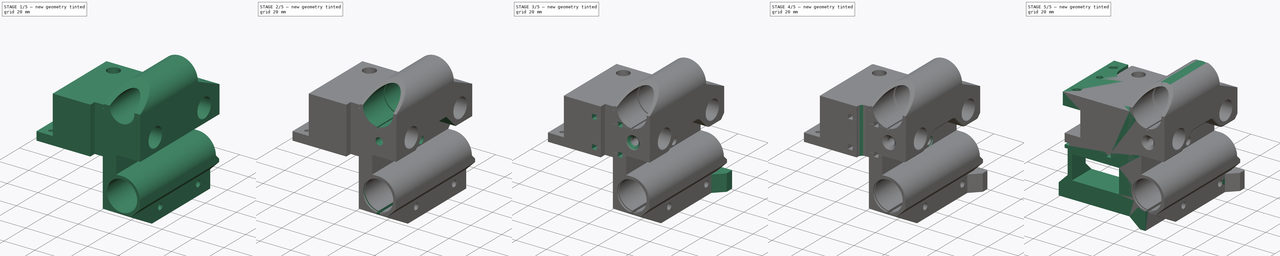
[diagram: build sequence overview — one tinted view per stage of 5, left to right]
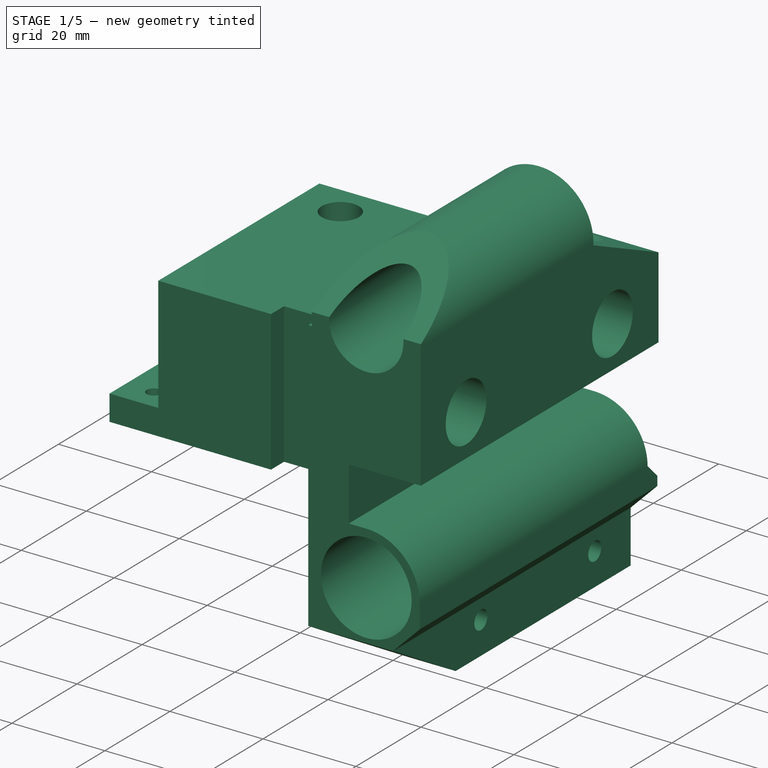
[diagram: stage 1 of 5 — iso view after this stage's code; geometry added in this stage tinted green]
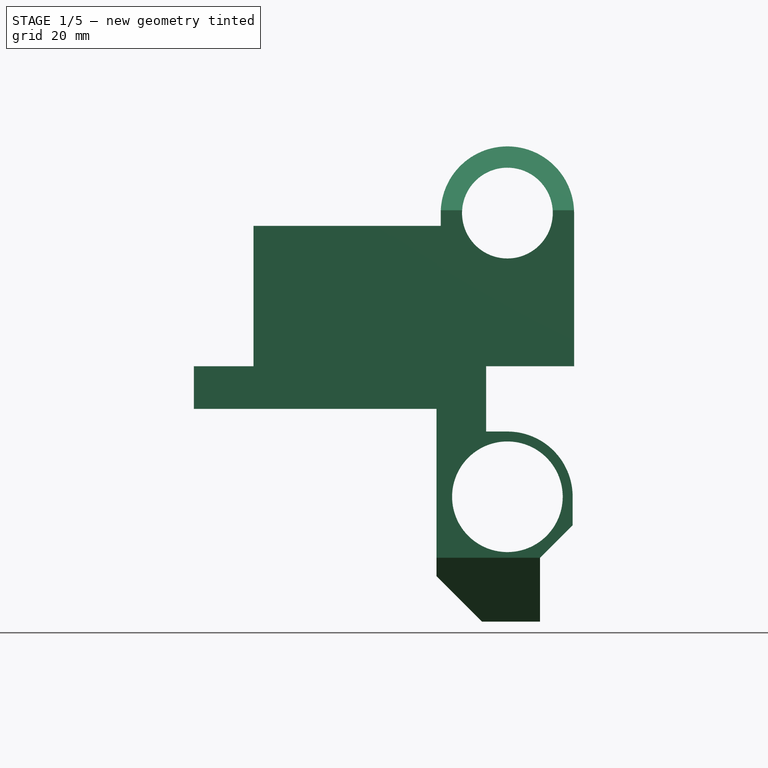
[diagram: stage 1 of 5 — front view after this stage's code; geometry added in this stage tinted green]
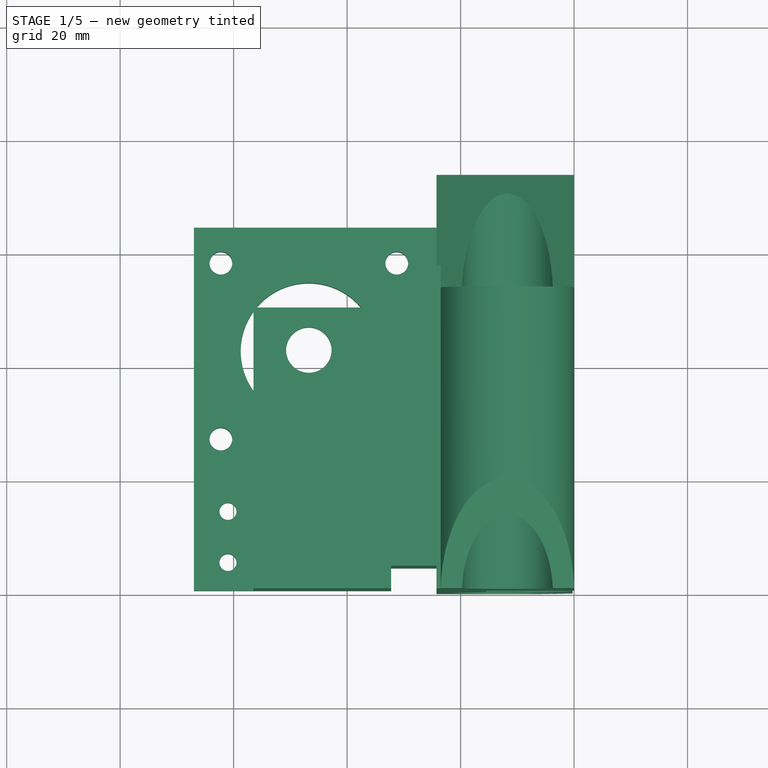
[diagram: stage 1 of 5 — top view after this stage's code; geometry added in this stage tinted green]
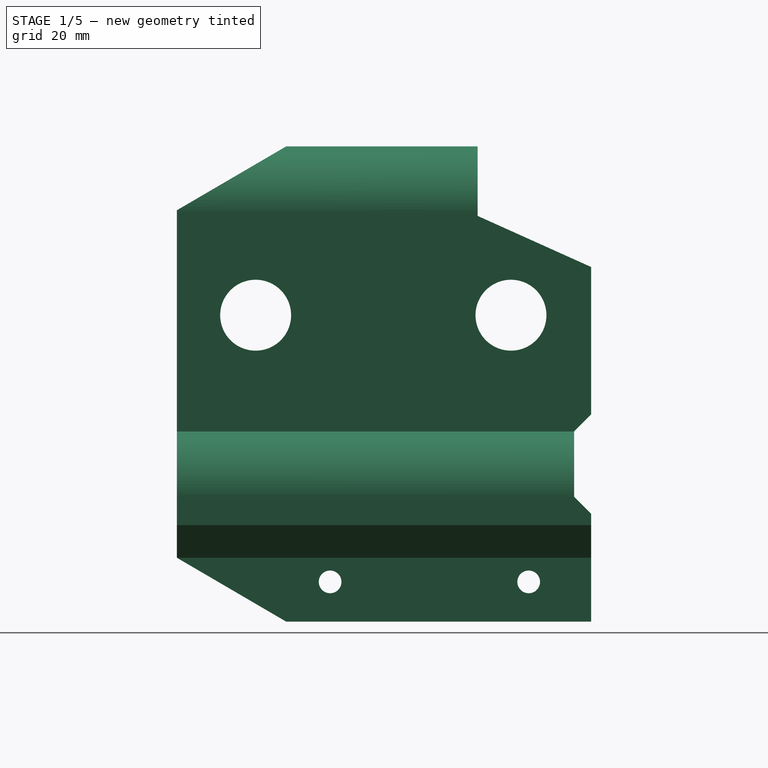
[diagram: stage 1 of 5 — right view after this stage's code; geometry added in this stage tinted green]
FCSTD DOCUMENT  (FreeCAD 0.18R4 (GitTag))
Label: x_motor_mount_v0.5
License: CreativeCommons Attribution-ShareAlike
LicenseURL: http://creativecommons.org/licenses/by-sa/4.0/
objects: Sketcher::SketchObject×43, PartDesign::Pocket×35, PartDesign::Pad×10, PartDesign::Chamfer×8, PartDesign::Fillet×8, Part::FeaturePython×1, App::FeaturePython×1, Part::Part2DObjectPython×1, PartDesign::Body×1
note: 152 computed .brp shape members not serialized (recipe doc carries the construction recipe); baked Part::Feature solids carry a one-line shape summary decoded from their .brp

FEATURE [App::FeaturePython] axialConstraint01_mirror  label="axialConstraint01__vr_x_idler_v3_8_01"  # a2plus constraint (typed FeaturePython)
  Object1 = vr_x_idler_v3_8_01
  Object2 = vr_x_motor_v4_7_01
  SubElement1 = Face27
  SubElement2 = Face77
  Type = axial
  directionConstraint = 0
  lockRotation = false
FEATURE [Sketcher::SketchObject] Sketch
  MapMode = 5
  Placement = pos=(0,0,0) rot=(1,0,0;1.5708rad)
  Support = -> [XZ_Plane]
  sketch-geometry (18):
    g0: LineSegment StartX=-56.5 StartY=45 StartZ=0 EndX=-67 EndY=45 EndZ=0
    g1: LineSegment StartX=-67 StartY=45 StartZ=0 EndX=-67 EndY=37.5 EndZ=0
    g2: LineSegment StartX=-16.25 StartY=0 StartZ=0 EndX=-6 EndY=0 EndZ=0
    g3: LineSegment StartX=-6 StartY=0 StartZ=0 EndX=-6 EndY=11.25 EndZ=0
    g4: LineSegment StartX=-6 StartY=11.25 StartZ=0 EndX=-0.25 EndY=17 EndZ=0
    g5: LineSegment StartX=-0.25 StartY=17 StartZ=0 EndX=-0.25 EndY=22 EndZ=0
    g6: LineSegment StartX=-15.5 StartY=33.5 StartZ=0 EndX=-15.5 EndY=45 EndZ=0
    g7: LineSegment StartX=-15.5 StartY=45 StartZ=0 EndX=0 EndY=45 EndZ=0
    g8: LineSegment StartX=0 StartY=45 StartZ=0 EndX=0 EndY=72 EndZ=0
    g9: LineSegment StartX=-23.5 StartY=72 StartZ=0 EndX=-23.5 EndY=69.75 EndZ=0
    g10: ArcOfCircle CenterX=-11.75 CenterY=22 CenterZ=0 NormalX=0 NormalY=0 NormalZ=1 AngleXU=0 Radius=11.5 StartAngle=0 EndAngle=1.5708
    g11: LineSegment StartX=-15.5 StartY=33.5 StartZ=0 EndX=-11.75 EndY=33.5 EndZ=0
    g12: ArcOfCircle CenterX=-11.75 CenterY=72 CenterZ=0 NormalX=0 NormalY=0 NormalZ=1 AngleXU=0 Radius=11.75 StartAngle=0 EndAngle=3.14159
    g13: LineSegment StartX=-67 StartY=37.5 StartZ=0 EndX=-24.25 EndY=37.5 EndZ=0
    g14: LineSegment StartX=-24.25 StartY=8 StartZ=0 EndX=-24.25 EndY=37.5 EndZ=0
    g15: LineSegment StartX=-24.25 StartY=8 StartZ=0 EndX=-16.25 EndY=0 EndZ=0
    g16: LineSegment StartX=-23.5 StartY=69.75 StartZ=0 EndX=-56.5 EndY=69.75 EndZ=0
    g17: LineSegment StartX=-56.5 StartY=69.75 StartZ=0 EndX=-56.5 EndY=45 EndZ=0
  constraints (55):
    c: Coincident(g0,g1)
    c: Coincident(g2,g3)
    c: Coincident(g3,g4)
    c: Coincident(g4,g5)
    c: Coincident(g6,g7)
    c: Coincident(g7,g8)
    c: Horizontal(g2)
    c: PointOnObject(g2,g-1)
    c: DistanceX(g2) = -6
    c: Vertical(g3)
    c: Vertical(g5)
    c: Vertical(g8)
    c: Vertical(g9)
    c: Vertical(g1)
    c: DistanceX(g2,g2) = 10.25
    c: Vertical(g6)
    c: PointOnObject(g7,g-2)
    c: Angle(g4) = 0.785398
    c: DistanceX(g4) = -0.25
    c: Coincident(g10,g11)
    c: Horizontal(g11)
    c: Coincident(g6,g11)
    c: DistanceX(g11,g11) = 3.75
    c: DistanceX(g10,g10) = 0
    c: DistanceY(g6,g6) = 11.5
    c: Horizontal(g7)
    c: DistanceY(g8,g8) = 27
    c: DistanceX(g12,g10) = 0
    c: DistanceY(g12,g10) = -50
    c: Coincident(g8,g12)
    c: Coincident(g9,g12)
    c: DistanceY(g8,g9) = 0
    c: Horizontal(g0)
    c: DistanceX(g10) = -11.75
    c: DistanceY(g10) = 22
    c: DistanceY(g3,g3) = 11.25
    c: Tangent(g5,g10) = -1.5708
    c: Horizontal(g13)
    c: DistanceY(g2,g13) = 37.5
    c: Coincident(g1,g13)
    c: Coincident(g2,g15)
    c: Coincident(g14,g15)
    c: Coincident(g13,g14)
    c: Vertical(g14)
    c: Angle(g15) = -0.785398
    c: DistanceX(g15,g15) = 8
    c: DistanceY(g9,g9) = 2.25
    c: Coincident(g0,g17)
    c: Vertical(g17)
    c: Horizontal(g16)
    c: Coincident(g16,g17)
    c: DistanceY(g17,g17) = 24.75
    c: DistanceX(g0,g0) = 10.5
    c: Coincident(g9,g16)
    c: DistanceX(g16,g16) = 33
FEATURE [PartDesign::Pad] Pad
  Length = 73
  Length2 = 100
  Placement = pos=(0,0,0) rot=(1,0,0;1.5708rad)
  Profile = -> Sketch
  Reversed = true
  Type = 0
FEATURE [Sketcher::SketchObject] Sketch001
  MapMode = 5
  Placement = pos=(0,0,0) rot=(0.707107,0,0.707107;3.14159rad)
  Support = -> [Pad]
  sketch-geometry (18):
    g0: Circle CenterX=54 CenterY=-13.875 CenterZ=0 NormalX=0 NormalY=0 NormalZ=1 AngleXU=0 Radius=6.25
    g1: Circle CenterX=54 CenterY=-58.875 CenterZ=0 NormalX=0 NormalY=0 NormalZ=1 AngleXU=0 Radius=6.25
    g2: LineSegment StartX=19 StartY=-73 StartZ=0 EndX=22 EndY=-70 EndZ=0
    g3: LineSegment StartX=22 StartY=-70 StartZ=0 EndX=33.5 EndY=-70 EndZ=0
    g4: LineSegment StartX=33.5 StartY=-70 StartZ=0 EndX=36.5 EndY=-73 EndZ=0
    g5: LineSegment StartX=36.5 StartY=-73 StartZ=0 EndX=19 EndY=-73 EndZ=0
    g6: LineSegment StartX=62.5 StartY=-73 StartZ=0 EndX=71.5 EndY=-53 EndZ=0
    g7: LineSegment StartX=71.5 StartY=-53 StartZ=0 EndX=83.75 EndY=-53 EndZ=0
    g8: LineSegment StartX=83.75 StartY=-53 StartZ=0 EndX=83.75 EndY=-73 EndZ=0
    g9: LineSegment StartX=83.75 StartY=-73 StartZ=0 EndX=62.5 EndY=-73 EndZ=0
    g10: LineSegment StartX=72.5 StartY=0 StartZ=0 EndX=83.75 EndY=-19.25 EndZ=0
    g11: LineSegment StartX=83.75 StartY=-19.25 StartZ=0 EndX=83.75 EndY=0 EndZ=0
    g12: LineSegment StartX=83.75 StartY=0 StartZ=0 EndX=72.5 EndY=0 EndZ=0
    g13: Circle CenterX=7 CenterY=-27 CenterZ=0 NormalX=0 NormalY=0 NormalZ=1 AngleXU=0 Radius=2
    g14: Circle CenterX=7 CenterY=-62 CenterZ=0 NormalX=0 NormalY=0 NormalZ=1 AngleXU=0 Radius=2
    g15: LineSegment StartX=11.25 StartY=0 StartZ=0 EndX=0 EndY=-19.25 EndZ=0
    g16: LineSegment StartX=0 StartY=-19.25 StartZ=0 EndX=0 EndY=0 EndZ=0
    g17: LineSegment StartX=0 StartY=0 StartZ=0 EndX=11.25 EndY=0 EndZ=0
  constraints (53):
    c: DistanceX(g0) = 54
    c: DistanceY(g0) = -13.875
    c: Radius(g0) = 6.25
    c: DistanceX(g0,g1) = 0
    c: DistanceY(g0,g1) = -45
    c: Equal(g1,g0)
    c: Coincident(g2,g3)
    c: Coincident(g3,g4)
    c: Coincident(g4,g5)
    c: Coincident(g6,g7)
    c: Coincident(g7,g8)
    c: Coincident(g8,g9)
    c: Coincident(g6,g9)
    c: Horizontal(g3)
    c: Horizontal(g5)
    c: Horizontal(g7)
    c: Horizontal(g9)
    c: Coincident(g10,g11)
    c: Coincident(g11,g12)
    c: Coincident(g10,g12)
    c: Horizontal(g12)
    c: Vertical(g8)
    c: Vertical(g11)
    c: PointOnObject(g11,g-1)
    c: DistanceX(g10) = 72.5
    c: DistanceX(g12,g12) = 11.25
    c: DistanceY(g11,g11) = 19.25
    c: PointOnObject(g7,g11)
    c: DistanceY(g7,g10) = 33.75
    c: DistanceX(g7,g7) = 12.25
    c: DistanceY(g8,g8) = 20
    c: DistanceX(g9,g9) = 21.25
    c: PointOnObject(g6,g5)
    c: DistanceX(g4,g6) = 26
    c: Angle(g4) = -0.785398
    c: Coincident(g2,g5)
    c: Angle(g2) = 0.785398
    c: DistanceY(g4,g4) = 3
    c: DistanceX(g3,g3) = 11.5
    c: DistanceX(g14) = 7
    c: DistanceY(g14) = -62
    c: DistanceX(g14,g13) = 0
    c: DistanceY(g14,g13) = 35
    c: Radius(g14) = 2
    c: Equal(g14,g13)
    c: Coincident(g15,g16)
    c: Coincident(g16,g17)
    c: Coincident(g17,g15)
    c: Coincident(g16,g-1)
    c: Horizontal(g17)
    c: Vertical(g16)
    c: DistanceX(g17,g17) = 11.25
    c: DistanceY(g16,g16) = 19.25
FEATURE [PartDesign::Pocket] Pocket
  BaseFeature = -> Pad
  Length = 5
  Length2 = 100
  Midplane = true
  Placement = pos=(0,0,0) rot=(1,0,0;1.5708rad)
  Profile = -> Sketch001
  Type = 1
FEATURE [Sketcher::SketchObject] Sketch002
  MapMode = 5
  Placement = pos=(0,70,-3.09e-14) rot=(-1,0,0;1.5708rad)
  Support = -> [Pocket]
  sketch-geometry (2):
    g0: Circle CenterX=-11.75 CenterY=-72 CenterZ=0 NormalX=0 NormalY=0 NormalZ=1 AngleXU=0 Radius=8
    g1: Circle CenterX=-11.75 CenterY=-22 CenterZ=0 NormalX=0 NormalY=0 NormalZ=1 AngleXU=0 Radius=9.75
  constraints (6):
    c: DistanceX(g1) = -11.75
    c: DistanceY(g1) = -22
    c: Radius(g1) = 9.75
    c: DistanceX(g0,g1) = 0
    c: DistanceY(g0,g1) = 50
    c: Radius(g0) = 8
FEATURE [PartDesign::Pocket] Pocket001
  BaseFeature = -> Pocket
  Length = 5
  Length2 = 100
  Midplane = true
  Placement = pos=(0,0,0) rot=(1,0,0;1.5708rad)
  Profile = -> Sketch002
  Type = 1
FEATURE [Sketcher::SketchObject] Sketch004
  MapMode = 5
  Placement = pos=(0,2.48e-14,37.5) rot=(1,0,0;3.14159rad)
  Support = -> [Pocket001]
  sketch-geometry (9):
    g0: Circle CenterX=-46.75 CenterY=-42.25 CenterZ=0 NormalX=0 NormalY=0 NormalZ=1 AngleXU=0 Radius=12
    g1: LineSegment [constr] StartX=-62.25 StartY=-26.75 StartZ=0 EndX=-62.25 EndY=-57.75 EndZ=0
    g2: LineSegment [constr] StartX=-62.25 StartY=-57.75 StartZ=0 EndX=-31.25 EndY=-57.75 EndZ=0
    g3: LineSegment [constr] StartX=-31.25 StartY=-57.75 StartZ=0 EndX=-31.25 EndY=-26.75 EndZ=0
    g4: LineSegment [constr] StartX=-31.25 StartY=-26.75 StartZ=0 EndX=-62.25 EndY=-26.75 EndZ=0
    g5: Circle [constr] CenterX=-46.75 CenterY=-42.25 CenterZ=0 NormalX=0 NormalY=0 NormalZ=1 AngleXU=0 Radius=21.9203
    g6: Circle CenterX=-62.25 CenterY=-26.75 CenterZ=0 NormalX=0 NormalY=0 NormalZ=1 AngleXU=0 Radius=2
    g7: Circle CenterX=-62.25 CenterY=-57.75 CenterZ=0 NormalX=0 NormalY=0 NormalZ=1 AngleXU=0 Radius=2
    g8: Circle CenterX=-31.25 CenterY=-57.75 CenterZ=0 NormalX=0 NormalY=0 NormalZ=1 AngleXU=0 Radius=2
  constraints (23):
    c: DistanceX(g0) = -46.75
    c: DistanceY(g0) = -42.25
    c: Radius(g0) = 12
    c: Coincident(g1,g2)
    c: Coincident(g2,g3)
    c: Coincident(g3,g4)
    c: Coincident(g4,g1)
    c: Equal(g1,g2)
    c: Equal(g1,g3)
    c: Equal(g1,g4)
    c: PointOnObject(g1,g5)
    c: PointOnObject(g2,g5)
    c: PointOnObject(g3,g5)
    c: PointOnObject(g4,g5)
    c: Coincident(g0,g5)
    c: Vertical(g1)
    c: DistanceX(g4,g4) = 31
    c: Coincident(g2,g8)
    c: Coincident(g1,g7)
    c: Coincident(g1,g6)
    c: Radius(g6) = 2
    c: Equal(g6,g7)
    c: Equal(g6,g8)
FEATURE [Sketcher::SketchObject] Sketch005
  MapMode = 5
  Placement = pos=(0,73,-1.46e-13) rot=(-1,0,0;1.5708rad)
  sketch-geometry (4):
    g0: LineSegment StartX=-67 StartY=-37.5 StartZ=0 EndX=-24.25 EndY=-37.5 EndZ=0
    g1: LineSegment StartX=-24.25 StartY=-37.5 StartZ=0 EndX=-24.25 EndY=-45 EndZ=0
    g2: LineSegment StartX=-24.25 StartY=-45 StartZ=0 EndX=-67 EndY=-45 EndZ=0
    g3: LineSegment StartX=-67 StartY=-45 StartZ=0 EndX=-67 EndY=-37.5 EndZ=0
  constraints (12):
    c: Coincident(g0,g1)
    c: Coincident(g1,g2)
    c: Coincident(g2,g3)
    c: Coincident(g3,g0)
    c: Horizontal(g0)
    c: Horizontal(g2)
    c: Vertical(g1)
    c: Vertical(g3)
    c: DistanceX(g0) = -24.25
    c: DistanceY(g0) = -37.5
    c: DistanceY(g1,g1) = 7.5
    c: DistanceX(g0,g0) = 42.75
FEATURE [PartDesign::Pocket] Pocket002
  BaseFeature = -> Pocket001
  Length = 8
  Length2 = 100
  Placement = pos=(0,0,0) rot=(1,0,0;1.5708rad)
  Profile = -> Sketch004
  Type = 0
FEATURE [PartDesign::Pocket] Pocket003
  BaseFeature = -> Pocket002
  Length = 9
  Length2 = 100
  Placement = pos=(0,0,0) rot=(1,0,0;1.5708rad)
  Profile = -> Sketch005
  Type = 0
FEATURE [Sketcher::SketchObject] Sketch007
  MapMode = 5
  Placement = pos=(-56.5,0,0) rot=(0.707107,0,-0.707107;3.14159rad)
  Support = -> [Pocket002]
  sketch-geometry (8):
    g0: LineSegment StartX=-69.75 StartY=-49.4894 StartZ=0 EndX=-61.5 EndY=-49.4894 EndZ=0
    g1: LineSegment StartX=-61.5 StartY=-49.4894 StartZ=0 EndX=-61.5 EndY=-20.4894 EndZ=0
    g2: LineSegment [constr] StartX=-61.5 StartY=-20.4894 StartZ=0 EndX=-45 EndY=-18.2339 EndZ=0
    g3: LineSegment StartX=-45 StartY=-18.2339 StartZ=0 EndX=-45 EndY=-73 EndZ=0
    g4: LineSegment StartX=-45 StartY=-73 StartZ=0 EndX=-69.75 EndY=-73 EndZ=0
    g5: LineSegment StartX=-69.75 StartY=-73 StartZ=0 EndX=-69.75 EndY=-49.4894 EndZ=0
    g6: ArcOfCircle CenterX=-54 CenterY=-13.875 CenterZ=0 NormalX=0 NormalY=0 NormalZ=1 AngleXU=0 Radius=10 StartAngle=3.86433 EndAngle=5.83216
    g7: Circle [constr] CenterX=-54 CenterY=-13.875 CenterZ=0 NormalX=0 NormalY=0 NormalZ=1 AngleXU=0 Radius=6.25
  constraints (23):
    c: Coincident(g0,g1)
    c: Coincident(g1,g2)
    c: Coincident(g2,g3)
    c: Coincident(g3,g4)
    c: Coincident(g4,g5)
    c: Coincident(g0,g5)
    c: Vertical(g5)
    c: Vertical(g1)
    c: Vertical(g3)
    c: Horizontal(g4)
    c: Horizontal(g0)
    c: DistanceX(g3) = -45
    c: DistanceY(g3) = -73
    c: DistanceX(g6) = -54
    c: DistanceY(g6) = -13.875
    c: Coincident(g6,g7)
    c: Radius(g7) = 6.25
    c: Coincident(g2,g6)
    c: Coincident(g1,g6)
    c: DistanceX(g1,g2) = 16.5
    c: DistanceY(g1,g1) = 29
    c: Radius(g6) = 10
    c: DistanceX(g0,g0) = 8.25
FEATURE [PartDesign::Pocket] Pocket004
  BaseFeature = -> Pocket003
  Length = 32.25
  Length2 = 100
  Placement = pos=(0,0,0) rot=(1,0,0;1.5708rad)
  Profile = -> Sketch007
  Type = 0
FEATURE [Sketcher::SketchObject] Sketch008
  MapMode = 5
  Placement = pos=(0,2.48e-14,37.5) rot=(1,0,0;3.14159rad)
  Support = -> [Pocket004]
  sketch-geometry (4):
    g0: LineSegment StartX=-67 StartY=0 StartZ=0 EndX=-24.25 EndY=0 EndZ=0
    g1: LineSegment StartX=-24.25 StartY=0 StartZ=0 EndX=-24.25 EndY=-21 EndZ=0
    g2: LineSegment StartX=-24.25 StartY=-21 StartZ=0 EndX=-67 EndY=-21 EndZ=0
    g3: LineSegment StartX=-67 StartY=-21 StartZ=0 EndX=-67 EndY=0 EndZ=0
  constraints (12):
    c: Coincident(g0,g1)
    c: Coincident(g1,g2)
    c: Coincident(g2,g3)
    c: Coincident(g3,g0)
    c: Horizontal(g0)
    c: Horizontal(g2)
    c: Vertical(g1)
    c: Vertical(g3)
    c: DistanceX(g0) = -24.25
    c: DistanceY(g0) = 0
    c: DistanceX(g0,g0) = 42.75
    c: DistanceY(g3,g3) = 21
FEATURE [PartDesign::Pocket] Pocket005
  BaseFeature = -> Pocket004
  Length = 2
  Length2 = 100
  Placement = pos=(0,0,0) rot=(1,0,0;1.5708rad)
  Profile = -> Sketch008
  Type = 0
FEATURE [Sketcher::SketchObject] Sketch010
  MapMode = 5
  Placement = pos=(0,3.56e-14,39.5) rot=(1,0,0;3.14159rad)
  Support = -> [Pocket005]
  sketch-geometry (2):
    g0: Circle CenterX=-61 CenterY=-14 CenterZ=0 NormalX=0 NormalY=0 NormalZ=1 AngleXU=0 Radius=1.5
    g1: Circle CenterX=-61 CenterY=-5 CenterZ=0 NormalX=0 NormalY=0 NormalZ=1 AngleXU=0 Radius=1.5
  constraints (6):
    c: DistanceX(g0) = -61
    c: DistanceY(g0) = -14
    c: DistanceX(g1,g0) = 0
    c: DistanceY(g1,g0) = -9
    c: Radius(g1) = 1.5
    c: Equal(g1,g0)
FEATURE [Sketcher::SketchObject] Sketch011
  MapMode = 5
  Placement = pos=(0,0,0) rot=(1,0,0;1.5708rad)
  sketch-geometry (4):
    g0: LineSegment StartX=-24.25 StartY=39.5 StartZ=0 EndX=-32.25 EndY=39.5 EndZ=0
    g1: LineSegment StartX=-32.25 StartY=39.5 StartZ=0 EndX=-32.25 EndY=69.75 EndZ=0
    g2: LineSegment StartX=-32.25 StartY=69.75 StartZ=0 EndX=-24.25 EndY=69.75 EndZ=0
    g3: LineSegment StartX=-24.25 StartY=69.75 StartZ=0 EndX=-24.25 EndY=39.5 EndZ=0
  constraints (12):
    c: Coincident(g0,g1)
    c: Coincident(g1,g2)
    c: Coincident(g2,g3)
    c: Coincident(g3,g0)
    c: Horizontal(g0)
    c: Horizontal(g2)
    c: Vertical(g1)
    c: Vertical(g3)
    c: DistanceX(g0) = -24.25
    c: DistanceY(g0) = 39.5
    c: DistanceX(g0,g0) = 8
    c: DistanceY(g3,g3) = 30.25
FEATURE [Sketcher::SketchObject] Sketch013
  MapMode = 5
  Placement = pos=(0,73,-6.5e-14) rot=(-1,0,0;1.5708rad)
  sketch-geometry (1):
    g0: Circle CenterX=-11 CenterY=-54 CenterZ=0 NormalX=0 NormalY=0 NormalZ=1 AngleXU=0 Radius=2.35
  constraints (3):
    c: DistanceX(g0) = -11
    c: DistanceY(g0) = -54
    c: Radius(g0) = 2.35
FEATURE [Sketcher::SketchObject] Sketch014
  MapMode = 5
  Placement = pos=(0,0,0) rot=(1,0,0;1.5708rad)
  sketch-geometry (1):
    g0: Circle CenterX=-11 CenterY=54 CenterZ=0 NormalX=0 NormalY=0 NormalZ=1 AngleXU=0 Radius=2.35
  constraints (3):
    c: DistanceX(g0) = -11
    c: DistanceY(g0) = 54
    c: Radius(g0) = 2.35
FEATURE [Sketcher::SketchObject] Sketch015
  MapMode = 5
  Placement = pos=(0,0,0) rot=(0.707107,0,0.707107;3.14159rad)
  sketch-geometry (4):
    g0: LineSegment StartX=53.75 StartY=-26.75 StartZ=0 EndX=45 EndY=-18 EndZ=0
    g1: LineSegment StartX=45 StartY=-18 StartZ=0 EndX=45 EndY=-54.75 EndZ=0
    g2: LineSegment StartX=45 StartY=-54.75 StartZ=0 EndX=53.75 EndY=-46 EndZ=0
    g3: LineSegment StartX=53.75 StartY=-46 StartZ=0 EndX=53.75 EndY=-26.75 EndZ=0
  constraints (12):
    c: Coincident(g0,g1)
    c: Coincident(g1,g2)
    c: Coincident(g2,g3)
    c: Coincident(g3,g0)
    c: Vertical(g1)
    c: Vertical(g3)
    c: DistanceX(g2) = 53.75
    c: DistanceY(g2) = -46
    c: DistanceY(g3,g3) = 19.25
    c: DistanceX(g2,g2) = 8.75
    c: Angle(g0) = 2.35619
    c: Angle(g2) = 0.785398
FEATURE [Sketcher::SketchObject] Sketch016
  MapMode = 5
  Placement = pos=(-15.5,0,0) rot=(0.707107,0,0.707107;3.14159rad)
  sketch-geometry (8):
    g0: LineSegment [constr] StartX=36.5 StartY=-33 StartZ=0 EndX=46 EndY=-33 EndZ=0
    g1: LineSegment [constr] StartX=46 StartY=-33 StartZ=0 EndX=46 EndY=-45 EndZ=0
    g2: LineSegment [constr] StartX=46 StartY=-45 StartZ=0 EndX=36.5 EndY=-45 EndZ=0
    g3: LineSegment [constr] StartX=36.5 StartY=-45 StartZ=0 EndX=36.5 EndY=-33 EndZ=0
    g4: Circle CenterX=36.5 CenterY=-33 CenterZ=0 NormalX=0 NormalY=0 NormalZ=1 AngleXU=0 Radius=2.354
    g5: Circle CenterX=46 CenterY=-33 CenterZ=0 NormalX=0 NormalY=0 NormalZ=1 AngleXU=0 Radius=2.354
    g6: Circle CenterX=46 CenterY=-45 CenterZ=0 NormalX=0 NormalY=0 NormalZ=1 AngleXU=0 Radius=2.354
    g7: Circle CenterX=36.5 CenterY=-45 CenterZ=0 NormalX=0 NormalY=0 NormalZ=1 AngleXU=0 Radius=2.354
  constraints (20):
    c: Coincident(g0,g1)
    c: Coincident(g1,g2)
    c: Coincident(g2,g3)
    c: Coincident(g3,g0)
    c: Horizontal(g0)
    c: Horizontal(g2)
    c: Vertical(g1)
    c: Vertical(g3)
    c: DistanceX(g0) = 36.5
    c: DistanceY(g0) = -33
    c: Coincident(g0,g4)
    c: Coincident(g0,g5)
    c: DistanceX(g0,g0) = 9.5
    c: DistanceY(g3,g3) = 12
    c: Coincident(g1,g6)
    c: Coincident(g2,g7)
    c: Radius(g7) = 2.354
    c: Equal(g7,g4)
    c: Equal(g7,g5)
    c: Equal(g7,g6)
FEATURE [Sketcher::SketchObject] Sketch017
  MapMode = 5
  Placement = pos=(0,0,0) rot=(1,0,0;1.5708rad)
  sketch-geometry (1):
    g0: Circle CenterX=-11.75 CenterY=72 CenterZ=0 NormalX=0 NormalY=0 NormalZ=1 AngleXU=0 Radius=9.75
  constraints (3):
    c: DistanceX(g0) = -11.75
    c: DistanceY(g0) = 72
    c: Radius(g0) = 9.75
FEATURE [Sketcher::SketchObject] Sketch018
  MapMode = 5
  Placement = pos=(0,19,-3e-14) rot=(1,0,0;1.5708rad)
  sketch-geometry (1):
    g0: Circle CenterX=-11.75 CenterY=72 CenterZ=0 NormalX=0 NormalY=0 NormalZ=1 AngleXU=0 Radius=10.5
  constraints (3):
    c: DistanceX(g0) = -11.75
    c: DistanceY(g0) = 72
    c: Radius(g0) = 10.5
FEATURE [Sketcher::SketchObject] Sketch019
  MapMode = 5
  Placement = pos=(0,20,-4.1e-14) rot=(1,0,0;1.5708rad)
  sketch-geometry (1):
    g0: Circle CenterX=-11.75 CenterY=72 CenterZ=0 NormalX=0 NormalY=0 NormalZ=1 AngleXU=0 Radius=9.75
  constraints (3):
    c: DistanceX(g0) = -11.75
    c: DistanceY(g0) = 72
    c: Radius(g0) = 9.75
FEATURE [Sketcher::SketchObject] Sketch020
  MapMode = 5
  Placement = pos=(0,0,0) rot=(1,0,0;1.5708rad)
  sketch-geometry (4):
    g0: LineSegment StartX=-12.25 StartY=61.3 StartZ=0 EndX=-11.25 EndY=61.3 EndZ=0
    g1: LineSegment StartX=-11.25 StartY=61.3 StartZ=0 EndX=-11.25 EndY=62.3 EndZ=0
    g2: LineSegment StartX=-11.25 StartY=62.3 StartZ=0 EndX=-12.25 EndY=62.3 EndZ=0
    g3: LineSegment StartX=-12.25 StartY=62.3 StartZ=0 EndX=-12.25 EndY=61.3 EndZ=0
  constraints (12):
    c: Coincident(g0,g1)
    c: Coincident(g1,g2)
    c: Coincident(g2,g3)
    c: Coincident(g3,g0)
    c: Horizontal(g0)
    c: Horizontal(g2)
    c: Vertical(g1)
    c: Vertical(g3)
    c: DistanceX(g2,g2) = 1
    c: DistanceX(g1) = -11.25
    c: DistanceY(g1) = 62.3
    c: Equal(g1,g2)
FEATURE [Sketcher::SketchObject] Sketch021
  MapMode = 5
  Placement = pos=(0,70,-1.24e-13) rot=(-1,0,0;1.5708rad)
  sketch-geometry (1):
    g0: Circle CenterX=-11.75 CenterY=-22 CenterZ=0 NormalX=0 NormalY=0 NormalZ=1 AngleXU=0 Radius=10.5
  constraints (3):
    c: DistanceX(g0) = -11.75
    c: DistanceY(g0) = -22
    c: Radius(g0) = 10.5
FEATURE [Sketcher::SketchObject] Sketch022
  MapMode = 5
  Placement = pos=(0,0,0) rot=(1,0,0;1.5708rad)
  sketch-geometry (1):
    g0: Circle CenterX=-11.75 CenterY=22 CenterZ=0 NormalX=0 NormalY=0 NormalZ=1 AngleXU=0 Radius=10.5
  constraints (3):
    c: DistanceX(g0) = -11.75
    c: DistanceY(g0) = 22
    c: Radius(g0) = 10.5
FEATURE [Sketcher::SketchObject] Sketch023
  MapMode = 5
  Placement = pos=(0,70,-1.4e-13) rot=(-1,0,0;1.5708rad)
  sketch-geometry (2):
    g0: Circle CenterX=-11.75 CenterY=-22 CenterZ=0 NormalX=0 NormalY=0 NormalZ=1 AngleXU=0 Radius=10.5
    g1: Circle CenterX=-11.75 CenterY=-22 CenterZ=0 NormalX=0 NormalY=0 NormalZ=1 AngleXU=0 Radius=9.75
  constraints (5):
    c: Coincident(g0,g1)
    c: DistanceX(g0) = -11.75
    c: DistanceY(g0) = -22
    c: Radius(g0) = 10.5
    c: Radius(g1) = 9.75
FEATURE [Sketcher::SketchObject] Sketch024
  MapMode = 5
  Placement = pos=(0,0,0) rot=(1,0,0;1.5708rad)
  sketch-geometry (2):
    g0: Circle CenterX=-11.75 CenterY=22 CenterZ=0 NormalX=0 NormalY=0 NormalZ=1 AngleXU=0 Radius=9.75
    g1: Circle CenterX=-11.75 CenterY=22 CenterZ=0 NormalX=0 NormalY=0 NormalZ=1 AngleXU=0 Radius=10.5
  constraints (5):
    c: DistanceX(g0) = -11.75
    c: DistanceY(g0) = 22
    c: Radius(g0) = 9.75
    c: Coincident(g0,g1)
    c: Radius(g1) = 10.5
FEATURE [Sketcher::SketchObject] Sketch025
  MapMode = 5
  Placement = pos=(0,73,-1.62e-13) rot=(-1,0,0;1.5708rad)
  sketch-geometry (4):
    g0: LineSegment StartX=0 StartY=-64 StartZ=0 EndX=-15.5 EndY=-64 EndZ=0
    g1: LineSegment StartX=-15.5 StartY=-64 StartZ=0 EndX=-15.5 EndY=-45 EndZ=0
    g2: LineSegment StartX=-15.5 StartY=-45 StartZ=0 EndX=0 EndY=-45 EndZ=0
    g3: LineSegment StartX=0 StartY=-45 StartZ=0 EndX=0 EndY=-64 EndZ=0
  constraints (12):
    c: Coincident(g0,g1)
    c: Coincident(g1,g2)
    c: Coincident(g2,g3)
    c: Coincident(g3,g0)
    c: Horizontal(g0)
    c: Horizontal(g2)
    c: Vertical(g1)
    c: Vertical(g3)
    c: DistanceX(g0) = 0
    c: DistanceY(g0) = -64
    c: DistanceY(g3,g3) = 19
    c: DistanceX(g2,g2) = 15.5
FEATURE [Sketcher::SketchObject] Sketch026
  MapMode = 5
  Placement = pos=(0,73,-1.7e-13) rot=(-1,0,0;1.5708rad)
  sketch-geometry (4):
    g0: LineSegment StartX=-12.75 StartY=0 StartZ=0 EndX=-10.75 EndY=0 EndZ=0
    g1: LineSegment StartX=-10.75 StartY=0 StartZ=0 EndX=-10.75 EndY=-12.3 EndZ=0
    g2: LineSegment StartX=-10.75 StartY=-12.3 StartZ=0 EndX=-12.75 EndY=-12.3 EndZ=0
    g3: LineSegment StartX=-12.75 StartY=-12.3 StartZ=0 EndX=-12.75 EndY=0 EndZ=0
  constraints (12):
    c: Coincident(g0,g1)
    c: Coincident(g1,g2)
    c: Coincident(g2,g3)
    c: Coincident(g3,g0)
    c: Horizontal(g0)
    c: Horizontal(g2)
    c: Vertical(g1)
    c: Vertical(g3)
    c: DistanceX(g0,g0) = 2
    c: PointOnObject(g0,g-1)
    c: DistanceY(g1,g1) = 12.3
    c: DistanceX(g0) = -10.75
FEATURE [Sketcher::SketchObject] Sketch027
  MapMode = 5
  Placement = pos=(-24.25,0,0) rot=(0.707107,0,-0.707107;3.14159rad)
  sketch-geometry (14):
    g0: LineSegment StartX=-7 StartY=-58.65 StartZ=0 EndX=-9.90119 EndY=-60.325 EndZ=0
    g1: LineSegment StartX=-9.90119 StartY=-60.325 StartZ=0 EndX=-9.90119 EndY=-63.675 EndZ=0
    g2: LineSegment StartX=-9.90119 StartY=-63.675 StartZ=0 EndX=-7 EndY=-65.35 EndZ=0
    g3: LineSegment StartX=-7 StartY=-65.35 StartZ=0 EndX=-4.09881 EndY=-63.675 EndZ=0
    g4: LineSegment StartX=-4.09881 StartY=-63.675 StartZ=0 EndX=-4.09881 EndY=-60.325 EndZ=0
    g5: LineSegment StartX=-4.09881 StartY=-60.325 StartZ=0 EndX=-7 EndY=-58.65 EndZ=0
    g6: Circle [constr] CenterX=-7 CenterY=-62 CenterZ=0 NormalX=0 NormalY=0 NormalZ=1 AngleXU=0 Radius=3.35
    g7: LineSegment StartX=-7 StartY=-23.6642 StartZ=0 EndX=-9.90119 EndY=-25.3392 EndZ=0
    g8: LineSegment StartX=-9.90119 StartY=-25.3392 StartZ=0 EndX=-9.90119 EndY=-28.6892 EndZ=0
    g9: LineSegment StartX=-9.90119 StartY=-28.6892 StartZ=0 EndX=-7 EndY=-30.3642 EndZ=0
    g10: LineSegment StartX=-7 StartY=-30.3642 StartZ=0 EndX=-4.09881 EndY=-28.6892 EndZ=0
    g11: LineSegment StartX=-4.09881 StartY=-28.6892 StartZ=0 EndX=-4.09881 EndY=-25.3392 EndZ=0
    g12: LineSegment StartX=-4.09881 StartY=-25.3392 StartZ=0 EndX=-7 EndY=-23.6642 EndZ=0
    g13: Circle [constr] CenterX=-7 CenterY=-27.0142 CenterZ=0 NormalX=0 NormalY=0 NormalZ=1 AngleXU=0 Radius=3.35
  constraints (34):
    c: Coincident(g0,g1)
    c: Coincident(g1,g2)
    c: Coincident(g2,g3)
    c: Coincident(g3,g4)
    c: Coincident(g4,g5)
    c: Coincident(g5,g0)
    c: Equal(g0, g1-g5) x5
    c: PointOnObject(g0,g6)
    c: PointOnObject(g1,g6)
    c: PointOnObject(g2,g6)
    c: PointOnObject(g3,g6)
    c: PointOnObject(g4,g6)
    c: PointOnObject(g5,g6)
    c: Vertical(g1)
    c: DistanceX(g6) = -7
    c: DistanceY(g6) = -62
    c: Radius(g6) = 3.35
    c: Coincident(g7,g8)
    c: Coincident(g8,g9)
    c: Coincident(g9,g10)
    c: Coincident(g10,g11)
    c: Coincident(g11,g12)
    c: Coincident(g12,g7)
    c: Equal(g7, g8-g12) x5
    c: PointOnObject(g7,g13)
    c: PointOnObject(g8,g13)
    c: PointOnObject(g9,g13)
    c: PointOnObject(g10,g13)
    c: PointOnObject(g11,g13)
    c: PointOnObject(g12,g13)
    c: Vertical(g11)
    c: DistanceX(g13,g6) = 0
    c: DistanceY(g13,g6) = -34.9858
    c: Equal(g13,g6)
FEATURE [Sketcher::SketchObject] Sketch028
  MapMode = 5
  Placement = pos=(0,0,1e-15) rot=(1,0,0;3.14159rad)
  sketch-geometry (6):
    g0: LineSegment StartX=-6 StartY=-66.45 StartZ=0 EndX=0 EndY=-72.45 EndZ=0
    g1: LineSegment StartX=0 StartY=-72.45 StartZ=0 EndX=0 EndY=-77.45 EndZ=0
    g2: LineSegment StartX=0 StartY=-77.45 StartZ=0 EndX=-15.25 EndY=-77.45 EndZ=0
    g3: LineSegment StartX=-15.25 StartY=-77.45 StartZ=0 EndX=-10.75 EndY=-72.95 EndZ=0
    g4: LineSegment StartX=-10.75 StartY=-72.95 StartZ=0 EndX=-6 EndY=-72.95 EndZ=0
    g5: LineSegment StartX=-6 StartY=-72.95 StartZ=0 EndX=-6 EndY=-66.45 EndZ=0
  constraints (18):
    c: Coincident(g0,g1)
    c: Coincident(g1,g2)
    c: Coincident(g2,g3)
    c: Coincident(g3,g4)
    c: Coincident(g4,g5)
    c: Coincident(g0,g5)
    c: Horizontal(g4)
    c: Horizontal(g2)
    c: Vertical(g1)
    c: Vertical(g5)
    c: PointOnObject(g1,g-2)
    c: DistanceY(g1) = -77.45
    c: DistanceY(g1,g1) = 5
    c: Angle(g0) = -0.785398
    c: DistanceX(g0,g0) = 6
    c: DistanceY(g5,g5) = 6.5
    c: DistanceX(g4,g4) = 4.75
    c: Angle(g3) = 0.785398
FEATURE [Sketcher::SketchObject] Sketch029
  MapMode = 5
  Placement = pos=(0,0,0) rot=(1,0,0;1.5708rad)
  sketch-geometry (28):
    g0: LineSegment StartX=-21 StartY=46 StartZ=0 EndX=-18 EndY=46 EndZ=0
    g1: LineSegment StartX=-18 StartY=46 StartZ=0 EndX=-18 EndY=43 EndZ=0
    g2: LineSegment StartX=-18 StartY=43 StartZ=0 EndX=-21 EndY=43 EndZ=0
    g3: LineSegment StartX=-21 StartY=43 StartZ=0 EndX=-21 EndY=46 EndZ=0
    g4: LineSegment StartX=-38 StartY=46 StartZ=0 EndX=-35 EndY=46 EndZ=0
    g5: LineSegment StartX=-35 StartY=46 StartZ=0 EndX=-35 EndY=43 EndZ=0
    g6: LineSegment StartX=-35 StartY=43 StartZ=0 EndX=-38 EndY=43 EndZ=0
    g7: LineSegment StartX=-38 StartY=43 StartZ=0 EndX=-38 EndY=46 EndZ=0
    g8: LineSegment StartX=-21 StartY=64 StartZ=0 EndX=-18 EndY=64 EndZ=0
    g9: LineSegment StartX=-18 StartY=64 StartZ=0 EndX=-18 EndY=61 EndZ=0
    g10: LineSegment StartX=-18 StartY=61 StartZ=0 EndX=-21 EndY=61 EndZ=0
    g11: LineSegment StartX=-21 StartY=61 StartZ=0 EndX=-21 EndY=64 EndZ=0
    g12: LineSegment StartX=-38 StartY=64 StartZ=0 EndX=-35 EndY=64 EndZ=0
    g13: LineSegment StartX=-35 StartY=64 StartZ=0 EndX=-35 EndY=61 EndZ=0
    g14: LineSegment StartX=-35 StartY=61 StartZ=0 EndX=-38 EndY=61 EndZ=0
    g15: LineSegment StartX=-38 StartY=61 StartZ=0 EndX=-38 EndY=64 EndZ=0
    g16: LineSegment [constr] StartX=-35 StartY=64 StartZ=0 EndX=-21 EndY=64 EndZ=0
    g17: LineSegment [constr] StartX=-21 StartY=64 StartZ=0 EndX=-21 EndY=61 EndZ=0
    g18: LineSegment [constr] StartX=-21 StartY=61 StartZ=0 EndX=-35 EndY=61 EndZ=0
    g19: LineSegment [constr] StartX=-35 StartY=61 StartZ=0 EndX=-35 EndY=64 EndZ=0
    g20: LineSegment [constr] StartX=-21 StartY=61 StartZ=0 EndX=-18 EndY=61 EndZ=0
    g21: LineSegment [constr] StartX=-18 StartY=61 StartZ=0 EndX=-18 EndY=46 EndZ=0
    g22: LineSegment [constr] StartX=-18 StartY=46 StartZ=0 EndX=-21 EndY=46 EndZ=0
    g23: LineSegment [constr] StartX=-21 StartY=46 StartZ=0 EndX=-21 EndY=61 EndZ=0
    g24: LineSegment [constr] StartX=-38 StartY=61 StartZ=0 EndX=-35 EndY=61 EndZ=0
    g25: LineSegment [constr] StartX=-35 StartY=61 StartZ=0 EndX=-35 EndY=46 EndZ=0
    g26: LineSegment [constr] StartX=-35 StartY=46 StartZ=0 EndX=-38 EndY=46 EndZ=0
    g27: LineSegment [constr] StartX=-38 StartY=46 StartZ=0 EndX=-38 EndY=61 EndZ=0
  constraints (78):
    c: Coincident(g0,g1)
    c: Coincident(g1,g2)
    c: Coincident(g2,g3)
    c: Coincident(g3,g0)
    c: Horizontal(g0)
    c: Horizontal(g2)
    c: Vertical(g1)
    c: Vertical(g3)
    c: Coincident(g4,g5)
    c: Coincident(g5,g6)
    c: Coincident(g6,g7)
    c: Coincident(g7,g4)
    c: Horizontal(g4)
    c: Horizontal(g6)
    c: Vertical(g5)
    c: Vertical(g7)
    c: DistanceX(g5) = -35
    c: DistanceY(g5) = 43
    c: DistanceY(g5,g5) = 3
    c: Equal(g4,g5)
    c: DistanceX(g2,g5) = -14
    c: DistanceY(g2,g5) = 0
    c: Equal(g2,g3)
    c: Equal(g3,g5)
    c: Coincident(g8,g9)
    c: Coincident(g9,g10)
    c: Coincident(g10,g11)
    c: Coincident(g11,g8)
    c: Horizontal(g8)
    c: Horizontal(g10)
    c: Vertical(g9)
    c: Vertical(g11)
    c: Coincident(g12,g13)
    c: Coincident(g13,g14)
    c: Coincident(g14,g15)
    c: Coincident(g15,g12)
    c: Horizontal(g12)
    c: Horizontal(g14)
    c: Vertical(g13)
    c: Vertical(g15)
    c: Coincident(g16,g17)
    c: Coincident(g17,g18)
    c: Coincident(g18,g19)
    c: Coincident(g19,g16)
    c: Horizontal(g16)
    c: Horizontal(g18)
    c: Vertical(g17)
    c: Vertical(g19)
    c: Coincident(g20,g21)
    c: Coincident(g21,g22)
    c: Coincident(g22,g23)
    c: Coincident(g23,g20)
    c: Horizontal(g20)
    c: Horizontal(g22)
    c: Vertical(g21)
    c: Vertical(g23)
    c: Coincident(g24,g25)
    c: Coincident(g25,g26)
    c: Coincident(g26,g27)
    c: Coincident(g27,g24)
    c: Horizontal(g24)
    c: Horizontal(g26)
    c: Vertical(g25)
    c: Vertical(g27)
    c: Coincident(g4,g26)
    c: Coincident(g4,g25)
    c: Coincident(g0,g22)
    c: Coincident(g0,g21)
    c: Coincident(g9,g20)
    c: Coincident(g10,g17)
    c: Coincident(g10,g20)
    c: Coincident(g13,g18)
    c: Coincident(g13,g24)
    c: Coincident(g14,g24)
    c: Coincident(g12,g16)
    c: Coincident(g8,g16)
    c: Equal(g1,g9)
    c: DistanceY(g25,g25) = 15
FEATURE [Sketcher::SketchObject] Sketch030
  MapMode = 5
  Placement = pos=(-35,0,0) rot=(0.707107,0,-0.707107;3.14159rad)
  sketch-geometry (12):
    g0: LineSegment StartX=-46 StartY=-10 StartZ=0 EndX=-43 EndY=-10 EndZ=0
    g1: LineSegment StartX=-43 StartY=-10 StartZ=0 EndX=-43 EndY=-13 EndZ=0
    g2: LineSegment StartX=-43 StartY=-13 StartZ=0 EndX=-46 EndY=-13 EndZ=0
    g3: LineSegment StartX=-46 StartY=-13 StartZ=0 EndX=-46 EndY=-10 EndZ=0
    g4: LineSegment StartX=-61 StartY=-13 StartZ=0 EndX=-64 EndY=-13 EndZ=0
    g5: LineSegment StartX=-64 StartY=-13 StartZ=0 EndX=-64 EndY=-10 EndZ=0
    g6: LineSegment StartX=-64 StartY=-10 StartZ=0 EndX=-61 EndY=-10 EndZ=0
    g7: LineSegment StartX=-61 StartY=-10 StartZ=0 EndX=-61 EndY=-13 EndZ=0
    g8: LineSegment [constr] StartX=-61 StartY=-10 StartZ=0 EndX=-46 EndY=-10 EndZ=0
    g9: LineSegment [constr] StartX=-46 StartY=-10 StartZ=0 EndX=-46 EndY=-13 EndZ=0
    g10: LineSegment [constr] StartX=-46 StartY=-13 StartZ=0 EndX=-61 EndY=-13 EndZ=0
    g11: LineSegment [constr] StartX=-61 StartY=-13 StartZ=0 EndX=-61 EndY=-10 EndZ=0
  constraints (34):
    c: Coincident(g0,g1)
    c: Coincident(g1,g2)
    c: Coincident(g2,g3)
    c: Coincident(g3,g0)
    c: Horizontal(g0)
    c: Horizontal(g2)
    c: Vertical(g1)
    c: Vertical(g3)
    c: DistanceX(g0) = -43
    c: DistanceY(g0) = -10
    c: DistanceY(g1,g1) = 3
    c: Equal(g0,g1)
    c: Coincident(g4,g5)
    c: Coincident(g5,g6)
    c: Coincident(g6,g7)
    c: Coincident(g7,g4)
    c: Horizontal(g4)
    c: Horizontal(g6)
    c: Vertical(g5)
    c: Vertical(g7)
    c: Coincident(g8,g9)
    c: Coincident(g9,g10)
    c: Coincident(g10,g11)
    c: Coincident(g11,g8)
    c: Horizontal(g8)
    c: Horizontal(g10)
    c: Vertical(g9)
    c: Vertical(g11)
    c: Coincident(g2,g9)
    c: Coincident(g0,g8)
    c: Coincident(g6,g8)
    c: Coincident(g4,g10)
    c: DistanceX(g10,g10) = 15
    c: Equal(g6,g0)
FEATURE [Sketcher::SketchObject] Sketch031
  MapMode = 5
  Placement = pos=(0,0,0) rot=(1,0,0;1.5708rad)
  sketch-geometry (12):
    g0: LineSegment StartX=-11.25 StartY=61.3038 StartZ=0 EndX=-11.35 EndY=61.3038 EndZ=0
    g1: LineSegment StartX=-11.35 StartY=61.3038 StartZ=0 EndX=-11.35 EndY=56.3238 EndZ=0
    g2: LineSegment StartX=-11.35 StartY=56.3238 StartZ=0 EndX=-11.25 EndY=56.3238 EndZ=0
    g3: LineSegment StartX=-11.25 StartY=56.3238 StartZ=0 EndX=-11.25 EndY=61.3038 EndZ=0
    g4: LineSegment StartX=-35 StartY=45 StartZ=0 EndX=-15.5 EndY=45 EndZ=0
    g5: LineSegment StartX=-15.5 StartY=45 StartZ=0 EndX=-15.5 EndY=44.9 EndZ=0
    g6: LineSegment StartX=-15.5 StartY=44.9 StartZ=0 EndX=-35 EndY=44.9 EndZ=0
    g7: LineSegment StartX=-35 StartY=44.9 StartZ=0 EndX=-35 EndY=45 EndZ=0
    g8: LineSegment StartX=-35.25 StartY=62.1 StartZ=0 EndX=-12.25 EndY=62.1 EndZ=0
    g9: LineSegment StartX=-12.25 StartY=62.1 StartZ=0 EndX=-12.25 EndY=62 EndZ=0
    g10: LineSegment StartX=-12.25 StartY=62 StartZ=0 EndX=-35.25 EndY=62 EndZ=0
    g11: LineSegment StartX=-35.25 StartY=62 StartZ=0 EndX=-35.25 EndY=62.1 EndZ=0
  constraints (36):
    c: Coincident(g0,g1)
    c: Coincident(g1,g2)
    c: Coincident(g2,g3)
    c: Coincident(g3,g0)
    c: Horizontal(g0)
    c: Horizontal(g2)
    c: Vertical(g1)
    c: Vertical(g3)
    c: Coincident(g4,g5)
    c: Coincident(g5,g6)
    c: Coincident(g6,g7)
    c: Coincident(g7,g4)
    c: Horizontal(g4)
    c: Horizontal(g6)
    c: Vertical(g5)
    c: Vertical(g7)
    c: DistanceY(g7,g7) = 0.1
    c: DistanceX(g2,g2) = 0.1
    c: DistanceX(g5) = -15.5
    c: DistanceY(g5) = 44.9
    c: DistanceX(g6,g6) = 19.5
    c: DistanceX(g2) = -11.25
    c: DistanceY(g2) = 56.3238
    c: DistanceY(g3,g3) = 4.98
    c: Coincident(g8,g9)
    c: Coincident(g9,g10)
    c: Coincident(g10,g11)
    c: Coincident(g11,g8)
    c: Horizontal(g8)
    c: Horizontal(g10)
    c: Vertical(g9)
    c: Vertical(g11)
    c: DistanceY(g11,g11) = 0.1
    c: DistanceX(g10,g10) = 23
    c: DistanceY(g9) = 62
    c: DistanceX(g9) = -12.25
FEATURE [Sketcher::SketchObject] Sketch032
  MapMode = 5
  Placement = pos=(-12.75,0,0) rot=(0.707107,0,0.707107;3.14159rad)
  sketch-geometry (4):
    g0: LineSegment StartX=12.3 StartY=-31 StartZ=0 EndX=13.8 EndY=-32.5 EndZ=0
    g1: LineSegment StartX=13.8 StartY=-32.5 StartZ=0 EndX=13.8 EndY=-37.5 EndZ=0
    g2: LineSegment StartX=13.8 StartY=-37.5 StartZ=0 EndX=12.3 EndY=-39 EndZ=0
    g3: LineSegment StartX=12.3 StartY=-39 StartZ=0 EndX=12.3 EndY=-31 EndZ=0
  constraints (12):
    c: Coincident(g0,g1)
    c: Coincident(g1,g2)
    c: Coincident(g2,g3)
    c: Coincident(g3,g0)
    c: Vertical(g1)
    c: Vertical(g3)
    c: DistanceX(g0) = 12.3
    c: DistanceY(g0) = -31
    c: DistanceX(g2,g2) = 1.5
    c: DistanceY(g3,g3) = 8
    c: Equal(g2,g0)
    c: DistanceY(g0,g0) = 1.5
FEATURE [Sketcher::SketchObject] Sketch033
  MapMode = 5
  Placement = pos=(-1e-14,1.35e-13,45) rot=(0,0,1;3.14159rad)
  sketch-geometry (8):
    g0: Circle CenterX=62.25 CenterY=-26.75 CenterZ=0 NormalX=0 NormalY=0 NormalZ=1 AngleXU=0 Radius=4
    g1: Circle CenterX=62.25 CenterY=-57.75 CenterZ=0 NormalX=0 NormalY=0 NormalZ=1 AngleXU=0 Radius=4
    g2: Circle CenterX=31.25 CenterY=-57.75 CenterZ=0 NormalX=0 NormalY=0 NormalZ=1 AngleXU=0 Radius=4
    g3: LineSegment [constr] StartX=31.25 StartY=-57.75 StartZ=0 EndX=62.25 EndY=-57.75 EndZ=0
    g4: LineSegment [constr] StartX=62.25 StartY=-57.75 StartZ=0 EndX=62.25 EndY=-26.75 EndZ=0
    g5: LineSegment [constr] StartX=62.25 StartY=-26.75 StartZ=0 EndX=31.25 EndY=-26.75 EndZ=0
    g6: LineSegment [constr] StartX=31.25 StartY=-26.75 StartZ=0 EndX=31.25 EndY=-57.75 EndZ=0
    g7: Circle [constr] CenterX=46.75 CenterY=-42.25 CenterZ=0 NormalX=0 NormalY=0 NormalZ=1 AngleXU=0 Radius=21.9203
  constraints (21):
    c: Coincident(g3,g4)
    c: Coincident(g4,g5)
    c: Coincident(g5,g6)
    c: Coincident(g6,g3)
    c: Equal(g3,g4)
    c: Equal(g3,g5)
    c: Equal(g3,g6)
    c: PointOnObject(g3,g7)
    c: PointOnObject(g4,g7)
    c: PointOnObject(g5,g7)
    c: PointOnObject(g6,g7)
    c: DistanceX(g7) = 46.75
    c: DistanceY(g7) = -42.25
    c: Coincident(g0,g4)
    c: Coincident(g1,g3)
    c: Coincident(g2,g3)
    c: Horizontal(g3)
    c: DistanceX(g3,g3) = 31
    c: Radius(g0) = 4
    c: Equal(g0,g1)
    c: Equal(g0,g2)
FEATURE [Sketcher::SketchObject] Sketch034
  MapMode = 5
  Placement = pos=(-1.35e-14,2.72e-14,61.5) rot=(1,0,0;3.14159rad)
  Support = -> [Pocket005]
  sketch-geometry (1):
    g0: Circle CenterX=-46.75 CenterY=-42 CenterZ=0 NormalX=0 NormalY=0 NormalZ=1 AngleXU=0 Radius=8.25
  constraints (3):
    c: DistanceX(g0) = -46.75
    c: DistanceY(g0) = -42
    c: Radius(g0) = 8.25
FEATURE [PartDesign::Pocket] Pocket006
  BaseFeature = -> Pocket005
  Length = 6
  Length2 = 100
  Placement = pos=(0,0,0) rot=(1,0,0;1.5708rad)
  Profile = -> Sketch010
  Type = 0
FEATURE [PartDesign::Pocket] Pocket007
  BaseFeature = -> Pocket006
  Length = 4
  Length2 = 100
  Placement = pos=(0,0,0) rot=(1,0,0;1.5708rad)
  Profile = -> Sketch011
  Type = 0
FEATURE [PartDesign::Pocket] Pocket008
  BaseFeature = -> Pocket007
  Length = 3.25
  Length2 = 100
  Placement = pos=(0,0,0) rot=(1,0,0;1.5708rad)
  Profile = -> Sketch034
  Type = 0
FEATURE [Sketcher::SketchObject] Sketch012
  MapMode = 5
  Placement = pos=(-1.9e-14,3.9e-14,64.75) rot=(1,0,0;3.14159rad)
  Support = -> [Pocket008]
  sketch-geometry (1):
    g0: Circle CenterX=-46.75 CenterY=-42 CenterZ=0 NormalX=0 NormalY=0 NormalZ=1 AngleXU=0 Radius=4
  constraints (3):
    c: DistanceX(g0) = -46.75
    c: DistanceY(g0) = -42
    c: Radius(g0) = 4
FEATURE [PartDesign::Pocket] Pocket009
  BaseFeature = -> Pocket008
  Length = 5
  Length2 = 100
  Placement = pos=(0,0,0) rot=(1,0,0;1.5708rad)
  Profile = -> Sketch012
  Type = 0
FEATURE [PartDesign::Pocket] Pocket010
  BaseFeature = -> Pocket009
  Length = 9
  Length2 = 100
  Placement = pos=(0,0,0) rot=(1,0,0;1.5708rad)
  Profile = -> Sketch013
  Type = 0
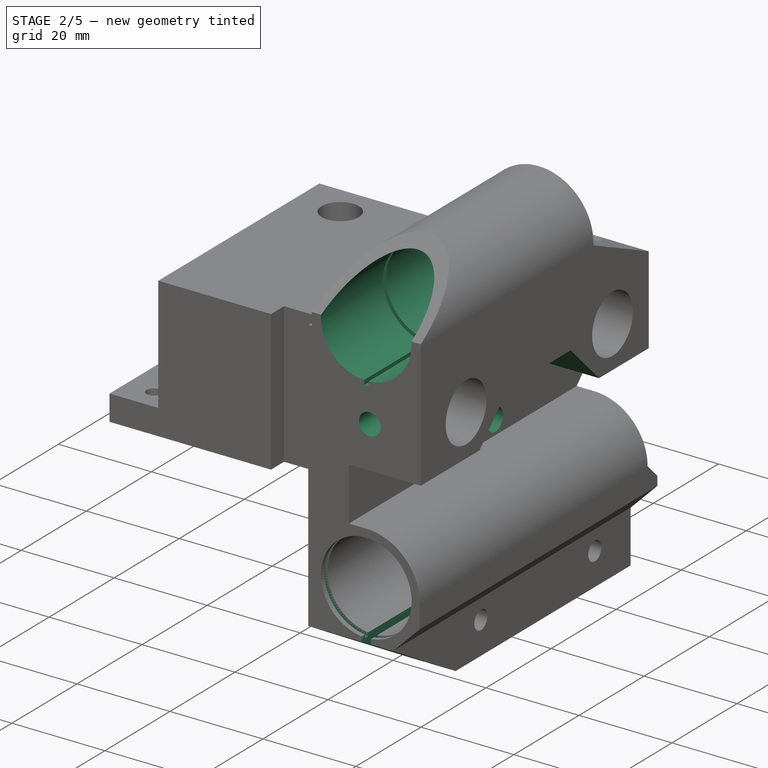
[diagram: stage 2 of 5 — iso view after this stage's code; geometry added in this stage tinted green]
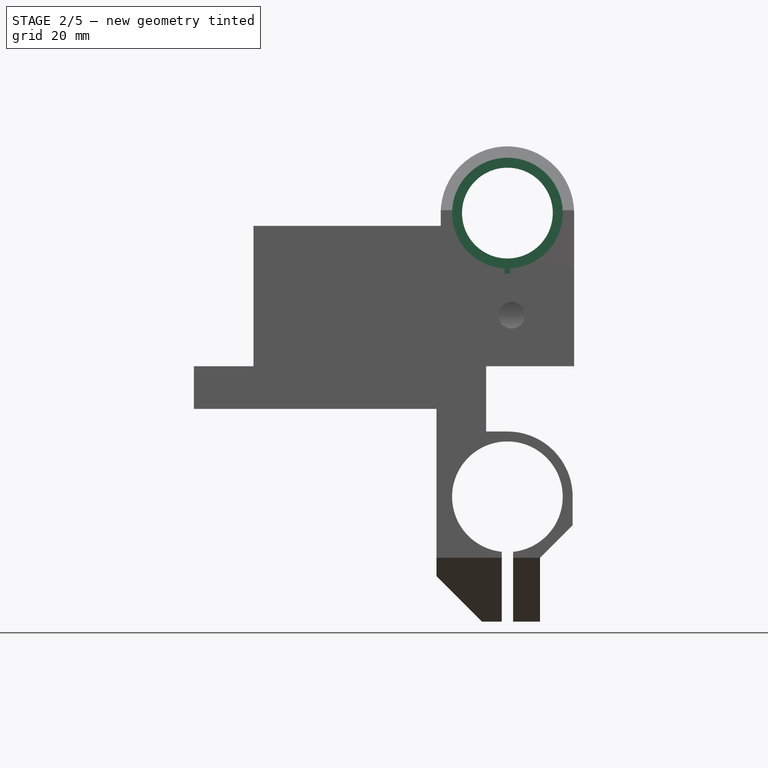
[diagram: stage 2 of 5 — front view after this stage's code; geometry added in this stage tinted green]
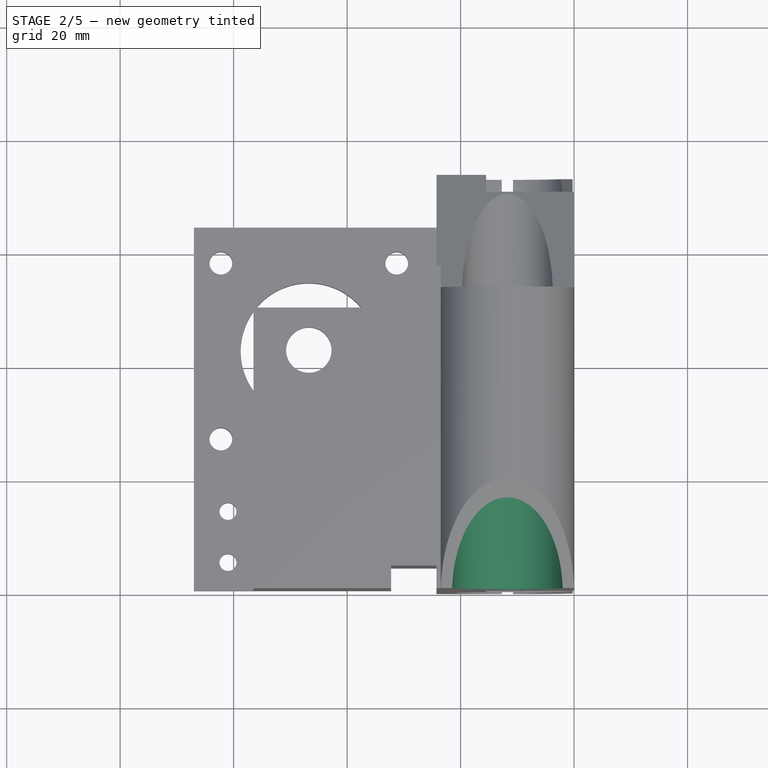
[diagram: stage 2 of 5 — top view after this stage's code; geometry added in this stage tinted green]
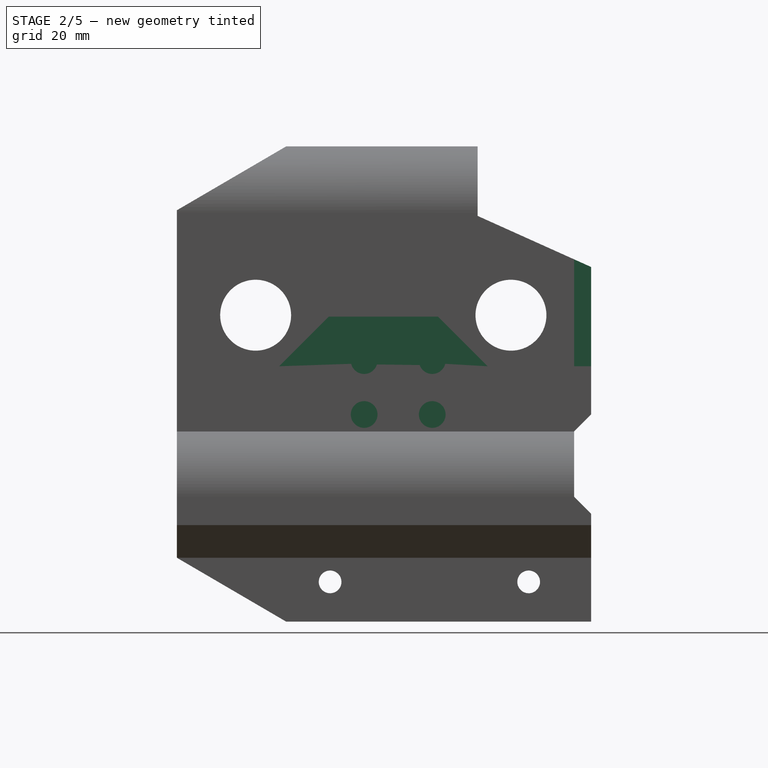
[diagram: stage 2 of 5 — right view after this stage's code; geometry added in this stage tinted green]
FEATURE [PartDesign::Pocket] Pocket011
  BaseFeature = -> Pocket010
  Length = 9
  Length2 = 100
  Placement = pos=(0,0,0) rot=(1,0,0;1.5708rad)
  Profile = -> Sketch014
  Type = 0
FEATURE [PartDesign::Pocket] Pocket012
  BaseFeature = -> Pocket011
  Length = 15.5
  Length2 = 100
  Placement = pos=(0,0,0) rot=(1,0,0;1.5708rad)
  Profile = -> Sketch015
  Type = 0
FEATURE [PartDesign::Pocket] Pocket013
  BaseFeature = -> Pocket012
  Length = 7
  Length2 = 100
  Placement = pos=(0,0,0) rot=(1,0,0;1.5708rad)
  Profile = -> Sketch016
  Type = 0
FEATURE [PartDesign::Pocket] Pocket014
  BaseFeature = -> Pocket013
  Length = 20
  Length2 = 100
  Placement = pos=(0,0,0) rot=(1,0,0;1.5708rad)
  Profile = -> Sketch017
  Type = 0
FEATURE [PartDesign::Pocket] Pocket015
  BaseFeature = -> Pocket014
  Length = 1
  Length2 = 100
  Placement = pos=(0,0,0) rot=(1,0,0;1.5708rad)
  Profile = -> Sketch018
  Type = 0
FEATURE [PartDesign::Pocket] Pocket016
  BaseFeature = -> Pocket015
  Length = 31
  Length2 = 100
  Placement = pos=(0,0,0) rot=(1,0,0;1.5708rad)
  Profile = -> Sketch019
  Type = 0
FEATURE [PartDesign::Pocket] Pocket017
  BaseFeature = -> Pocket016
  Length = 47
  Length2 = 100
  Placement = pos=(0,0,0) rot=(1,0,0;1.5708rad)
  Profile = -> Sketch020
  Type = 0
FEATURE [PartDesign::Pocket] Pocket018
  BaseFeature = -> Pocket017
  Length = 2
  Length2 = 100
  Placement = pos=(0,0,0) rot=(1,0,0;1.5708rad)
  Profile = -> Sketch021
  Type = 0
FEATURE [PartDesign::Pocket] Pocket019
  BaseFeature = -> Pocket018
  Length = 2
  Length2 = 100
  Placement = pos=(0,0,0) rot=(1,0,0;1.5708rad)
  Profile = -> Sketch022
  Type = 0
FEATURE [PartDesign::Pad] Pad001
  BaseFeature = -> Pocket019
  Length = 1
  Length2 = 100
  Placement = pos=(0,0,0) rot=(1,0,0;1.5708rad)
  Profile = -> Sketch023
  Reversed = true
  Type = 0
FEATURE [PartDesign::Pad] Pad002
  BaseFeature = -> Pad001
  Length = 1
  Length2 = 100
  Placement = pos=(0,0,0) rot=(1,0,0;1.5708rad)
  Profile = -> Sketch024
  Reversed = true
  Type = 0
FEATURE [PartDesign::Pocket] Pocket020
  BaseFeature = -> Pad002
  Length = 3
  Length2 = 100
  Placement = pos=(0,0,0) rot=(1,0,0;1.5708rad)
  Profile = -> Sketch025
  Type = 0
FEATURE [PartDesign::Pocket] Pocket021
  BaseFeature = -> Pocket020
  Length = 5
  Length2 = 100
  Placement = pos=(0,0,0) rot=(1,0,0;1.5708rad)
  Profile = -> Sketch026
  Type = 1
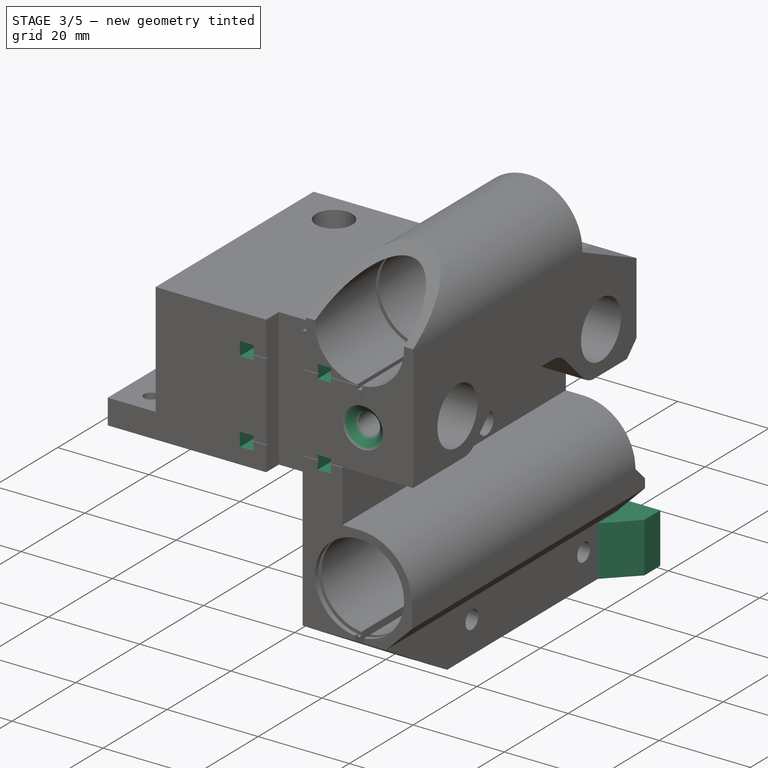
[diagram: stage 3 of 5 — iso view after this stage's code; geometry added in this stage tinted green]
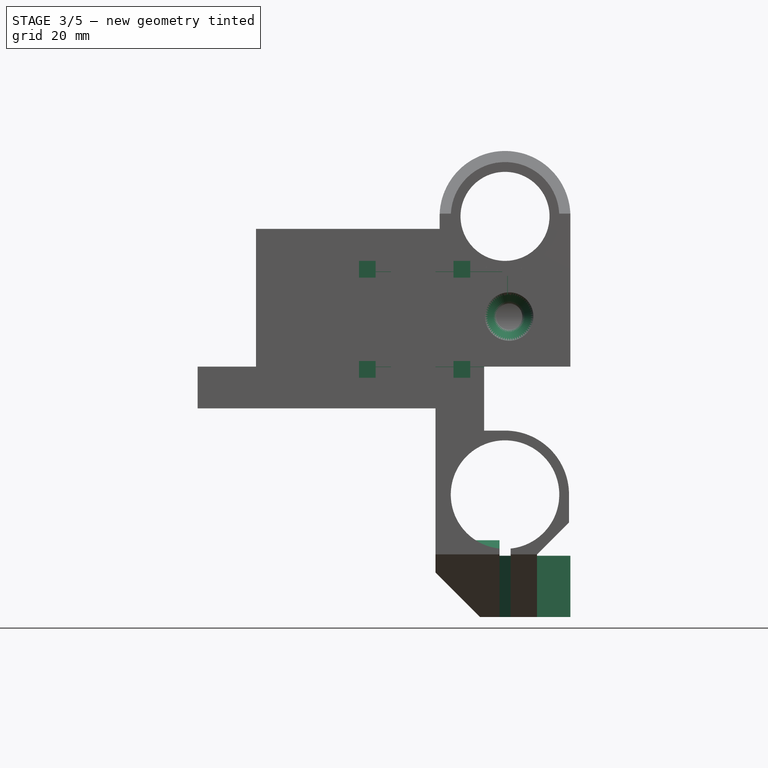
[diagram: stage 3 of 5 — front view after this stage's code; geometry added in this stage tinted green]
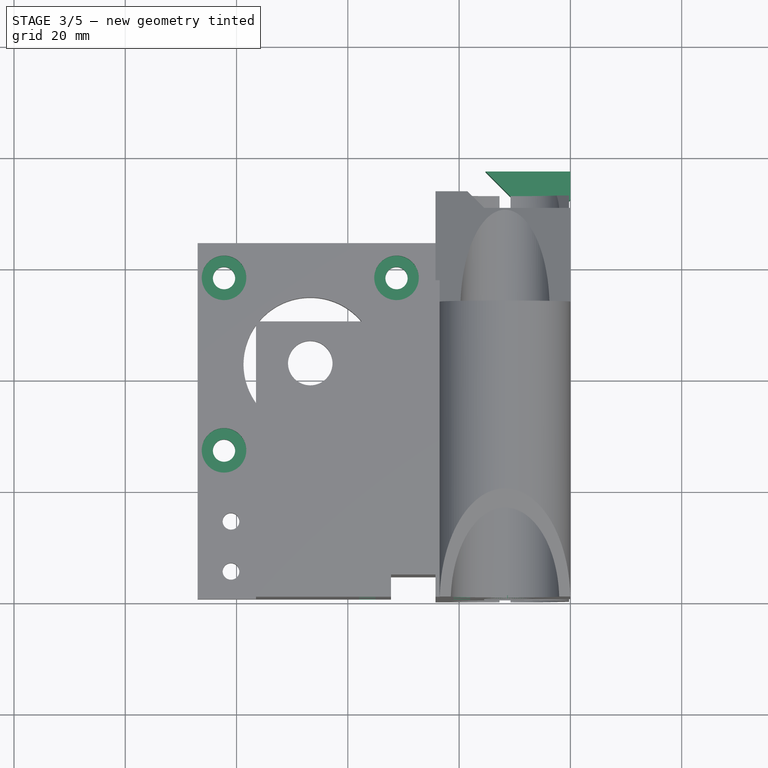
[diagram: stage 3 of 5 — top view after this stage's code; geometry added in this stage tinted green]
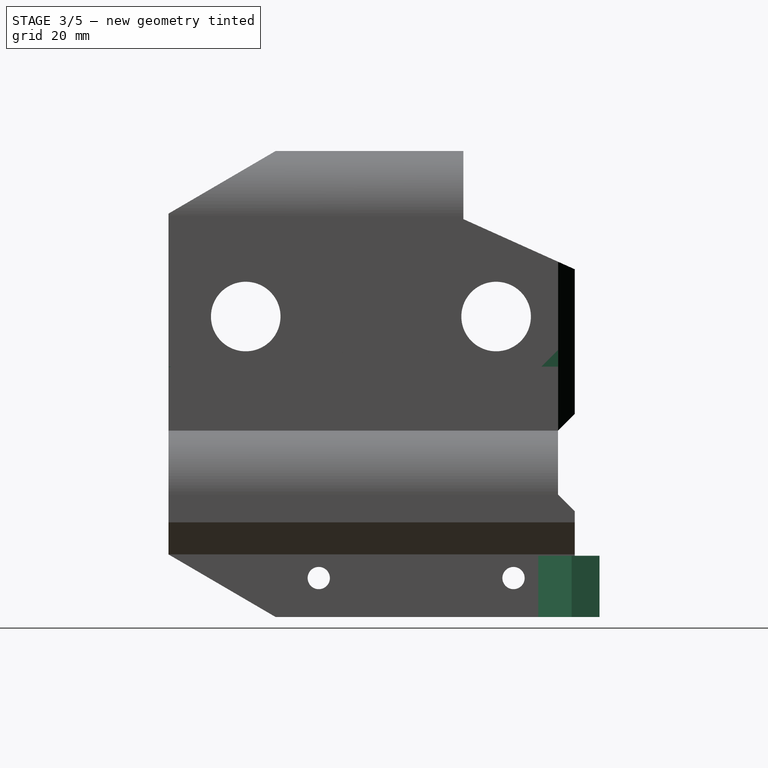
[diagram: stage 3 of 5 — right view after this stage's code; geometry added in this stage tinted green]
FEATURE [PartDesign::Pocket] Pocket022
  BaseFeature = -> Pocket021
  Length = 9
  Length2 = 100
  Placement = pos=(0,0,0) rot=(1,0,0;1.5708rad)
  Profile = -> Sketch027
  Type = 0
FEATURE [PartDesign::Pad] Pad003
  BaseFeature = -> Pocket022
  Length = 11
  Length2 = 100
  Placement = pos=(0,0,0) rot=(1,0,0;1.5708rad)
  Profile = -> Sketch028
  Reversed = true
  Type = 0
FEATURE [PartDesign::Pocket] Pocket023
  BaseFeature = -> Pad003
  Length = 13
  Length2 = 100
  Placement = pos=(0,0,0) rot=(1,0,0;1.5708rad)
  Profile = -> Sketch029
  Type = 0
FEATURE [PartDesign::Pocket] Pocket024
  BaseFeature = -> Pocket023
  Length = 14
  Length2 = 100
  Placement = pos=(0,0,0) rot=(1,0,0;1.5708rad)
  Profile = -> Sketch030
  Type = 0
FEATURE [PartDesign::Pad] Pad004
  BaseFeature = -> Pocket024
  Length = 10
  Length2 = 100
  Placement = pos=(0,0,0) rot=(1,0,0;1.5708rad)
  Profile = -> Sketch032
  Reversed = true
  Type = 0
FEATURE [PartDesign::Pocket] Pocket025
  BaseFeature = -> Pad004
  Length = 3
  Length2 = 100
  Placement = pos=(0,0,0) rot=(1,0,0;1.5708rad)
  Profile = -> Sketch033
  Type = 0
FEATURE [PartDesign::Chamfer] Chamfer
  Base = -> Pocket025 [Edge42]
  BaseFeature = -> Pocket025
  Placement = pos=(0,0,0) rot=(1,0,0;1.5708rad)
  Size = 2
FEATURE [PartDesign::Pocket] Pocket026
  BaseFeature = -> Chamfer
  Length = 0.4
  Length2 = 100
  Placement = pos=(0,0,0) rot=(1,0,0;1.5708rad)
  Profile = -> Sketch031
  Type = 0
FEATURE [Sketcher::SketchObject] Sketch035
  ExternalGeometry = -> [Pocket026]
  MapMode = 5
  Placement = pos=(-1.35e-14,2.72e-14,61.5) rot=(1,0,0;3.14159rad)
  Support = -> [Pocket026]
  sketch-geometry (7):
    g0: Circle [constr] CenterX=-46.75 CenterY=-42 CenterZ=0 NormalX=0 NormalY=0 NormalZ=1 AngleXU=0 Radius=8.125
    g1: ArcOfCircle CenterX=-46.75 CenterY=-42 CenterZ=0 NormalX=0 NormalY=0 NormalZ=1 AngleXU=0 Radius=9.75 StartAngle=5.40725 EndAngle=7.85398
    g2: ArcOfCircle CenterX=-46.75 CenterY=-42 CenterZ=0 NormalX=0 NormalY=0 NormalZ=1 AngleXU=0 Radius=8.125 StartAngle=5.11057 EndAngle=10.5974
    g3: LineSegment StartX=-43.5996 StartY=-49.4894 StartZ=0 EndX=-40.5073 EndY=-49.4894 EndZ=0
    g4: LineSegment StartX=-56.5 StartY=-49.4894 StartZ=0 EndX=-49.9004 EndY=-49.4894 EndZ=0
    g5: LineSegment StartX=-56.5 StartY=-49.4894 StartZ=0 EndX=-56.5 EndY=-32.25 EndZ=0
    g6: LineSegment StartX=-56.5 StartY=-32.25 StartZ=0 EndX=-46.75 EndY=-32.25 EndZ=0
  constraints (20):
    c: DistanceX(g0) = -46.75
    c: DistanceY(g0) = -42
    c: Radius(g0) = 8.125
    c: Coincident(g1,g0)
    c: Coincident(g2,g0)
    c: Equal(g2,g0)
    c: Coincident(g3,g2)
    c: Coincident(g3,g1)
    c: Horizontal(g3)
    c: Horizontal(g4)
    c: Coincident(g2,g4)
    c: PointOnObject(g2,g3)
    c: Radius(g1) = 9.75
    c: PointOnObject(g2,g-3)
    c: Coincident(g4,g5)
    c: Vertical(g5)
    c: Coincident(g5,g6)
    c: Horizontal(g6)
    c: DistanceX(g4) = -56.5
    c: Tangent(g6,g1) = 1.5708
FEATURE [PartDesign::Pad] Pad005
  BaseFeature = -> Pocket026
  Length = 1.75
  Length2 = 100
  Placement = pos=(0,0,0) rot=(1,0,0;1.5708rad)
  Profile = -> Sketch035
  Type = 0
FEATURE [PartDesign::Fillet] Fillet
  Base = -> Pad005 [Edge166,Edge168,Edge68,Edge164]
  BaseFeature = -> Pad005
  Placement = pos=(0,0,0) rot=(1,0,0;1.5708rad)
  Radius = 5
FEATURE [PartDesign::Chamfer] Chamfer001
  Base = -> Fillet [Edge106]
  BaseFeature = -> Fillet
  Placement = pos=(0,0,0) rot=(1,0,0;1.5708rad)
  Size = 2.99
FEATURE [PartDesign::Chamfer] Chamfer002
  Base = -> Chamfer001 [Edge39]
  BaseFeature = -> Chamfer001
  Placement = pos=(0,0,0) rot=(1,0,0;1.5708rad)
  Size = 3
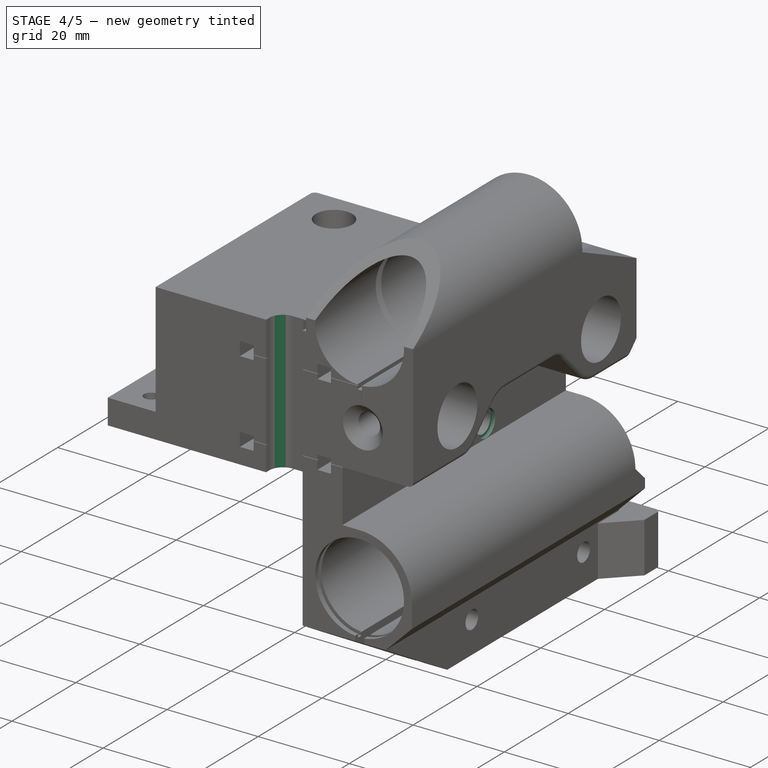
[diagram: stage 4 of 5 — iso view after this stage's code; geometry added in this stage tinted green]
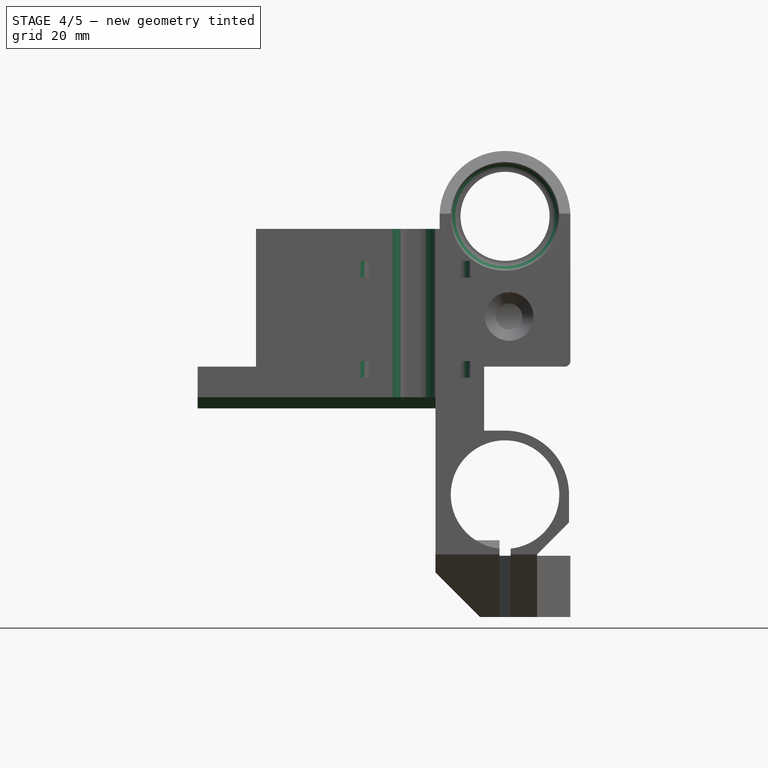
[diagram: stage 4 of 5 — front view after this stage's code; geometry added in this stage tinted green]
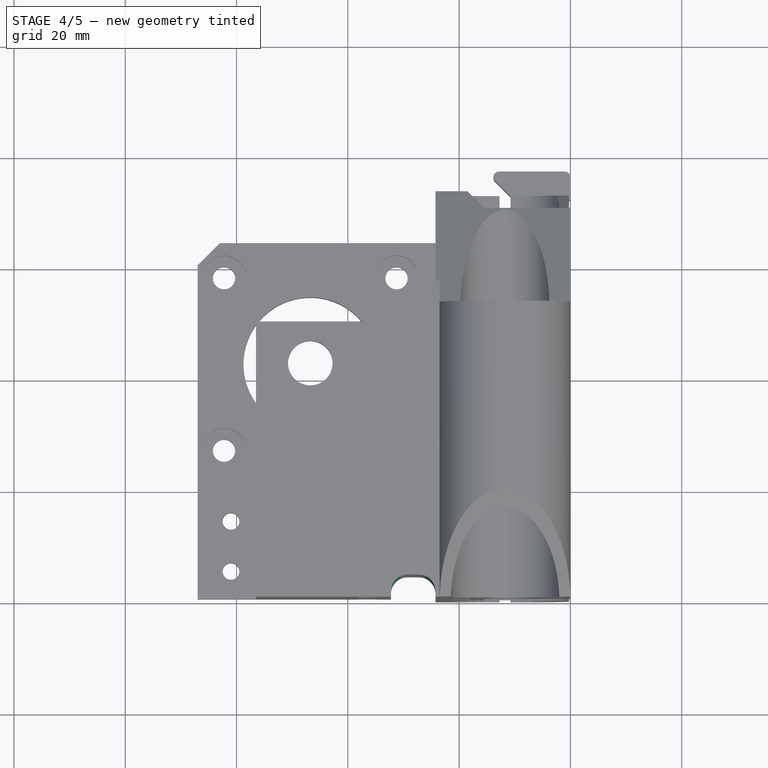
[diagram: stage 4 of 5 — top view after this stage's code; geometry added in this stage tinted green]
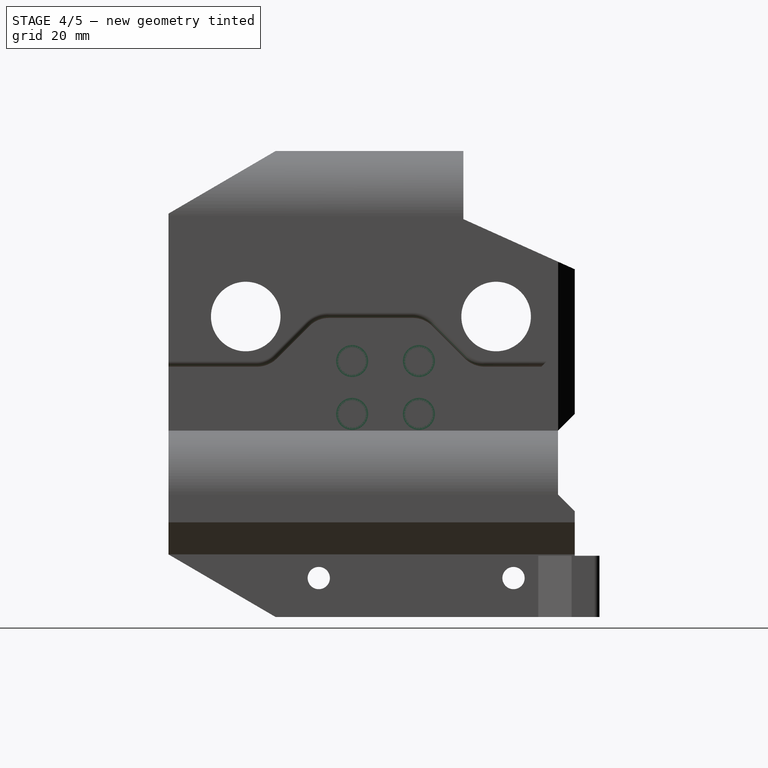
[diagram: stage 4 of 5 — right view after this stage's code; geometry added in this stage tinted green]
FEATURE [PartDesign::Fillet] Fillet001
  Base = -> Chamfer002 [Edge203,Edge42]
  BaseFeature = -> Chamfer002
  Placement = pos=(0,0,0) rot=(1,0,0;1.5708rad)
  Radius = 1
FEATURE [PartDesign::Chamfer] Chamfer003
  Base = -> Fillet001 [Edge446]
  BaseFeature = -> Fillet001
  Placement = pos=(0,0,0) rot=(1,0,0;1.5708rad)
  Size = 1.99
FEATURE [PartDesign::Chamfer] Chamfer004
  Base = -> Chamfer003 [Edge104]
  BaseFeature = -> Chamfer003
  Placement = pos=(0,0,0) rot=(1,0,0;1.5708rad)
  Size = 4
FEATURE [PartDesign::Fillet] Fillet002
  Base = -> Chamfer004 [Edge613]
  BaseFeature = -> Chamfer004
  Placement = pos=(0,0,0) rot=(1,0,0;1.5708rad)
  Radius = 1.74
FEATURE [PartDesign::Chamfer] Chamfer005
  Base = -> Fillet002 [Edge12,Edge584]
  BaseFeature = -> Fillet002
  Placement = pos=(0,0,0) rot=(1,0,0;1.5708rad)
  Size = 0.74
FEATURE [PartDesign::Fillet] Fillet003
  Base = -> Chamfer005 [Edge633,Edge535]
  BaseFeature = -> Chamfer005
  Placement = pos=(0,0,0) rot=(1,0,0;1.5708rad)
  Radius = 1
FEATURE [PartDesign::Fillet] Fillet004
  Base = -> Fillet003 [Edge218,Edge209,Edge617,Edge383,Edge490,Edge485,Edge612,Edge606]
  BaseFeature = -> Fillet003
  Placement = pos=(0,0,0) rot=(1,0,0;1.5708rad)
  Radius = 2
FEATURE [PartDesign::Chamfer] Chamfer006
  Base = -> Fillet004 [Edge664]
  BaseFeature = -> Fillet004
  Placement = pos=(0,0,0) rot=(1,0,0;1.5708rad)
  Size = 1.74
FEATURE [PartDesign::Chamfer] Chamfer007
  Base = -> Chamfer006 [Edge9,Edge76,Edge285]
  BaseFeature = -> Chamfer006
  Placement = pos=(0,0,0) rot=(1,0,0;1.5708rad)
  Size = 1
FEATURE [PartDesign::Fillet] Fillet005
  Base = -> Chamfer007 [Edge187,Edge122]
  BaseFeature = -> Chamfer007
  Placement = pos=(0,0,0) rot=(1,0,0;1.5708rad)
  Radius = 3
FEATURE [PartDesign::Pad] Pad006
  BaseFeature = -> Fillet005
  Length = 0.6
  Length2 = 100
  Placement = pos=(0,0,0) rot=(1,0,0;1.5708rad)
  Profile = -> Fillet005 [Face49]
  Type = 0
FEATURE [Sketcher::SketchObject] Sketch036
  ExternalGeometry = -> [Pad006]
  MapMode = 5
  Placement = pos=(-15.5,0,0) rot=(0.707107,0,0.707107;3.14159rad)
  Support = -> [Pad006]
  sketch-geometry (4):
    g0: Circle CenterX=46 CenterY=-33 CenterZ=0 NormalX=0 NormalY=0 NormalZ=1 AngleXU=0 Radius=2.875
    g1: Circle CenterX=46 CenterY=-45 CenterZ=0 NormalX=0 NormalY=0 NormalZ=1 AngleXU=0 Radius=2.875
    g2: Circle CenterX=36.5 CenterY=-45 CenterZ=0 NormalX=0 NormalY=0 NormalZ=1 AngleXU=0 Radius=2.875
    g3: Circle CenterX=36.5 CenterY=-33 CenterZ=0 NormalX=0 NormalY=0 NormalZ=1 AngleXU=0 Radius=2.875
  constraints (8):
    c: Coincident(g0,g-4)
    c: Coincident(g1,g-3)
    c: Coincident(g2,g-6)
    c: Coincident(g3,g-5)
    c: Radius(g0) = 2.875
    c: Equal(g0,g1)
    c: Equal(g0,g2)
    c: Equal(g0,g3)
FEATURE [PartDesign::Pocket] Pocket027
  BaseFeature = -> Pad006
  Length = 0.75
  Length2 = 100
  Placement = pos=(0,0,0) rot=(1,0,0;1.5708rad)
  Profile = -> Sketch036
  Refine = true
  Type = 0
FEATURE [Sketcher::SketchObject] Sketch037
  ExternalGeometry = -> [Pocket027]
  MapMode = 5
  Placement = pos=(0,70,-1.723e-13) rot=(-1,0,0;1.5708rad)
  Support = -> [Pocket027]
  sketch-geometry (2):
    g0: Circle CenterX=-11 CenterY=-54 CenterZ=0 NormalX=0 NormalY=0 NormalZ=1 AngleXU=0 Radius=3.35
    g1: Circle CenterX=-11 CenterY=-54 CenterZ=0 NormalX=0 NormalY=0 NormalZ=1 AngleXU=0 Radius=2.35
  constraints (4):
    c: Coincident(g0,g-4)
    c: Coincident(g1,g0)
    c: Equal(g-4,g1)
    c: Equal(g0,g-3)
FEATURE [PartDesign::Pad] Pad007
  BaseFeature = -> Pocket027
  Length = 1
  Length2 = 100
  Placement = pos=(0,0,0) rot=(1,0,0;1.5708rad)
  Profile = -> Sketch037
  Refine = true
  Reversed = true
  Type = 0
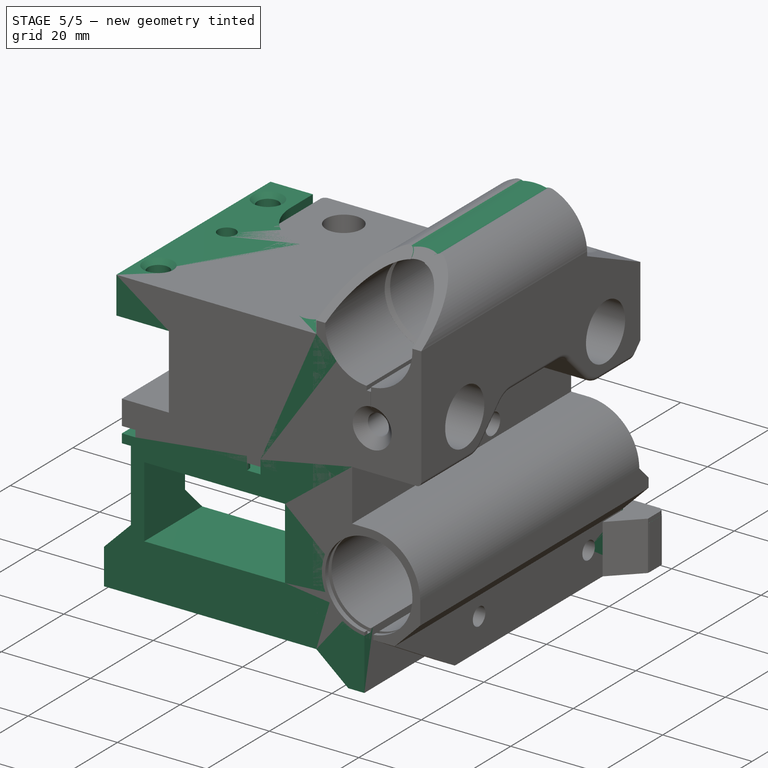
[diagram: stage 5 of 5 — iso view after this stage's code; geometry added in this stage tinted green]
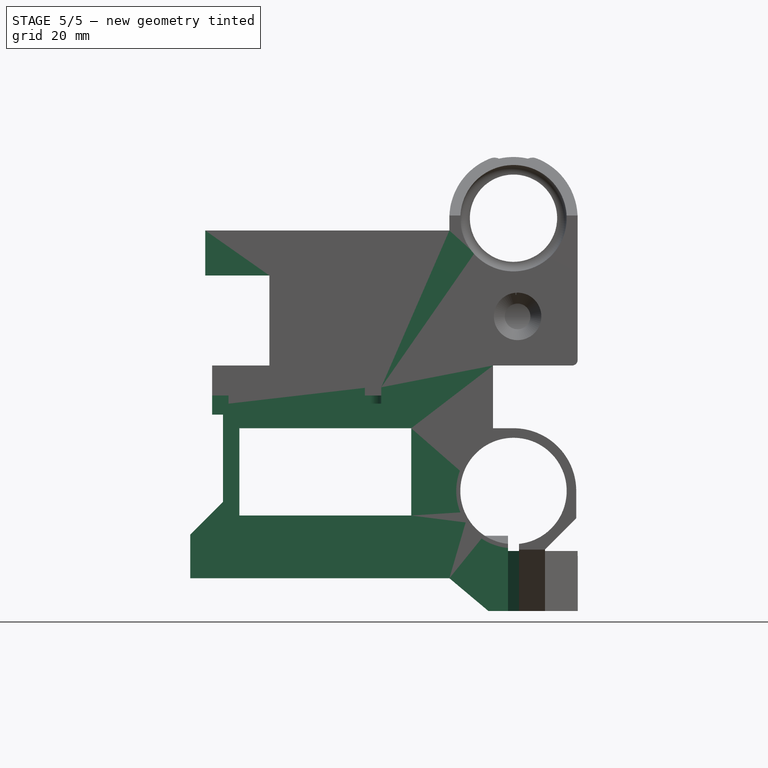
[diagram: stage 5 of 5 — front view after this stage's code; geometry added in this stage tinted green]
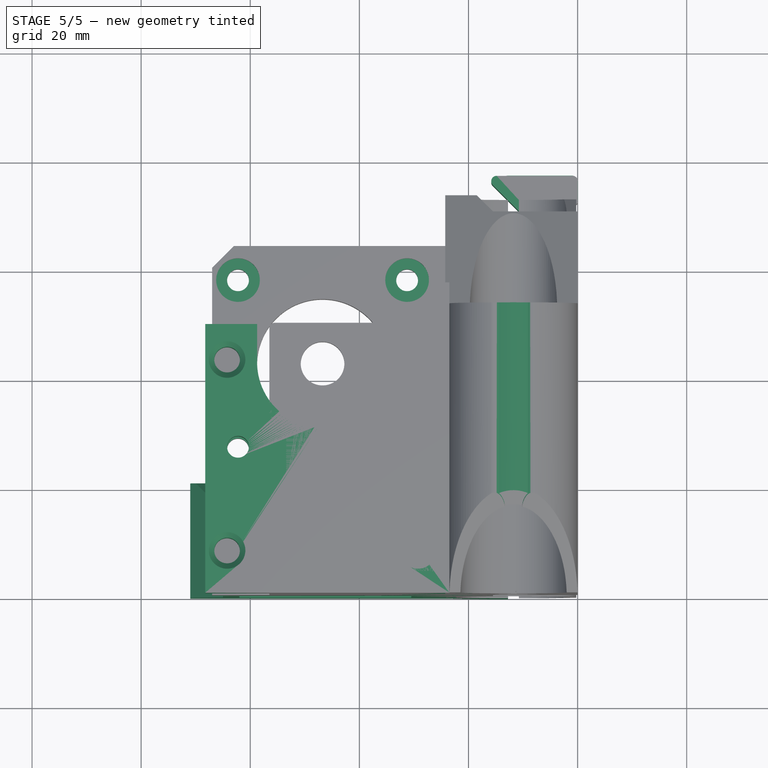
[diagram: stage 5 of 5 — top view after this stage's code; geometry added in this stage tinted green]
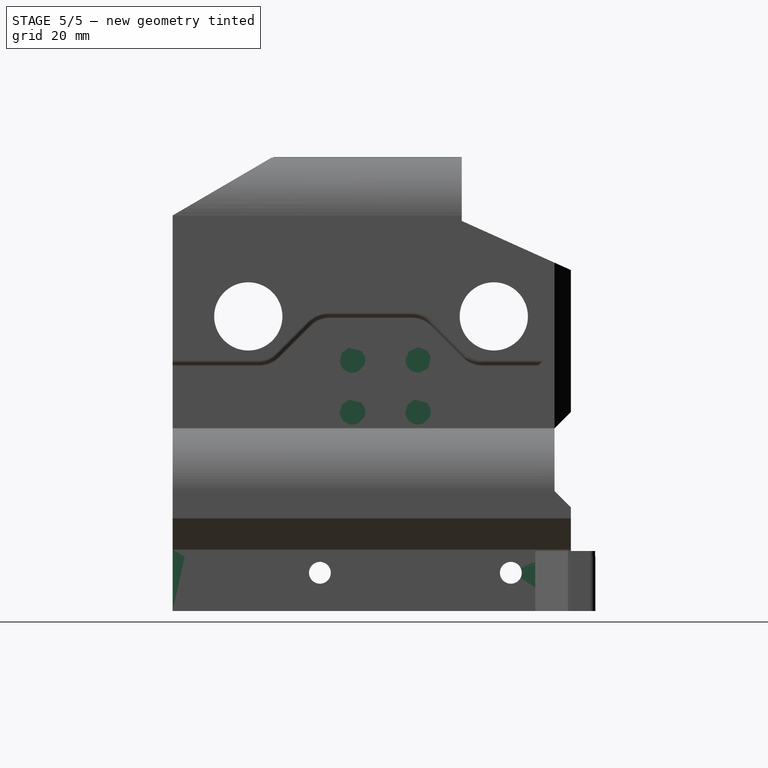
[diagram: stage 5 of 5 — right view after this stage's code; geometry added in this stage tinted green]
FEATURE [Part::FeaturePython] vr_x_motor_v4_7_01  # a2plus imported part (geometry in sourceFile) (typed FeaturePython)
  Placement = pos=(-71,-6.18e-13,6) rot=(1,0,0;1.5708rad)
  fixedPosition = true
  sourceFile = <userpath>/Projects/taz-quiver/production_parts/printed_parts/x_motor/vr_x_motor_v4.7.fcstd
  timeLastImport = 1.54837e+09
  updateColors = true
FEATURE [Sketcher::SketchObject] Sketch038
  ExternalGeometry = -> [Pad007]
  MapMode = 5
  Placement = pos=(0,70,-1.723e-13) rot=(-1,0,0;1.5708rad)
  Support = -> [Pad007]
  sketch-geometry (1):
    g0: Circle CenterX=-11 CenterY=-54 CenterZ=0 NormalX=0 NormalY=0 NormalZ=1 AngleXU=0 Radius=2.875
  constraints (2):
    c: Coincident(g0,g-3)
    c: Radius(g0) = 2.875
FEATURE [PartDesign::Pocket] Pocket028
  BaseFeature = -> Pad007
  Length = 0.75
  Length2 = 100
  Placement = pos=(0,0,0) rot=(1,0,0;1.5708rad)
  Profile = -> Sketch038
  Refine = true
  Type = 0
FEATURE [Sketcher::SketchObject] Sketch039
  ExternalGeometry = -> [Pocket028]
  MapMode = 5
  Placement = pos=(0,1e-16,0) rot=(1,0,0;1.5708rad)
  Support = -> [Pocket028]
  sketch-geometry (1):
    g0: Circle CenterX=-11 CenterY=54 CenterZ=0 NormalX=0 NormalY=0 NormalZ=1 AngleXU=0 Radius=2.875
  constraints (2):
    c: Coincident(g0,g-3)
    c: Radius(g0) = 2.875
FEATURE [PartDesign::Pocket] Pocket029
  BaseFeature = -> Pocket028
  Length = 2.1
  Length2 = 100
  Placement = pos=(0,0,0) rot=(1,0,0;1.5708rad)
  Profile = -> Sketch039
  Refine = true
  Type = 0
FEATURE [Sketcher::SketchObject] Sketch040
  ExternalGeometry = -> [Pocket029]
  MapMode = 5
  Placement = pos=(0,2.1,-1.4e-15) rot=(1,0,0;1.5708rad)
  Support = -> [Pocket029]
  sketch-geometry (2):
    g0: Circle CenterX=-11 CenterY=54 CenterZ=0 NormalX=0 NormalY=0 NormalZ=1 AngleXU=0 Radius=2.875
    g1: Circle CenterX=-11 CenterY=54 CenterZ=0 NormalX=0 NormalY=0 NormalZ=1 AngleXU=0 Radius=2.6125
  constraints (4):
    c: Coincident(g0,g-4)
    c: Equal(g-4,g0)
    c: Coincident(g1,g0)
    c: Radius(g1) = 2.6125
FEATURE [PartDesign::Pad] Pad008
  BaseFeature = -> Pocket029
  Length = 0.35
  Length2 = 100
  Placement = pos=(0,0,0) rot=(1,0,0;1.5708rad)
  Profile = -> Sketch040
  Refine = true
  Type = 0
FEATURE [Sketcher::SketchObject] Sketch041
  ExternalGeometry = -> [Pad008]
  MapMode = 5
  Placement = pos=(0,3.56e-14,39.5) rot=(1,0,0;3.14159rad)
  Support = -> [Pad008]
  sketch-geometry (2):
    g0: Circle CenterX=-61 CenterY=-14 CenterZ=0 NormalX=0 NormalY=0 NormalZ=1 AngleXU=0 Radius=1.75
    g1: Circle CenterX=-61 CenterY=-5 CenterZ=0 NormalX=0 NormalY=0 NormalZ=1 AngleXU=0 Radius=1.75
  constraints (4):
    c: Coincident(g0,g-4)
    c: Coincident(g1,g-3)
    c: Radius(g1) = 1.75
    c: Equal(g1,g0)
FEATURE [PartDesign::Pocket] Pocket030
  BaseFeature = -> Pad008
  Length = 0.75
  Length2 = 100
  Placement = pos=(0,0,0) rot=(1,0,0;1.5708rad)
  Profile = -> Sketch041
  Refine = true
  Type = 0
FEATURE [Sketcher::SketchObject] Sketch042
  ExternalGeometry = -> [Pocket030]
  MapMode = 5
  Placement = pos=(0,53,-2.34e-14) rot=(-1,0,0;1.5708rad)
  Support = -> [Pocket030]
  sketch-geometry (4):
    g0: LineSegment StartX=-13.25 StartY=-79.8581 StartZ=0 EndX=-10.25 EndY=-79.8581 EndZ=0
    g1: LineSegment StartX=-10.25 StartY=-79.8581 StartZ=0 EndX=-10.25 EndY=-84.8581 EndZ=0
    g2: LineSegment StartX=-10.25 StartY=-84.8581 StartZ=0 EndX=-13.25 EndY=-84.8581 EndZ=0
    g3: LineSegment StartX=-13.25 StartY=-84.8581 StartZ=0 EndX=-13.25 EndY=-79.8581 EndZ=0
  constraints (12):
    c: Coincident(g0,g1)
    c: Coincident(g1,g2)
    c: Coincident(g2,g3)
    c: Coincident(g3,g0)
    c: Horizontal(g0)
    c: Horizontal(g2)
    c: Vertical(g1)
    c: Vertical(g3)
    c: PointOnObject(g0,g-3)
    c: PointOnObject(g0,g-3)
    c: DistanceY(g1,g1) = 5
    c: DistanceX(g0,g0) = 3
FEATURE [PartDesign::Pocket] Pocket031
  BaseFeature = -> Pocket030
  Length = 5
  Length2 = 100
  Placement = pos=(0,0,0) rot=(1,0,0;1.5708rad)
  Profile = -> Sketch042
  Refine = true
  Type = 1
FEATURE [PartDesign::Fillet] Fillet006
  Base = -> Pocket031 [Edge467,Edge514]
  BaseFeature = -> Pocket031
  Placement = pos=(0,0,0) rot=(1,0,0;1.5708rad)
  Radius = 2
FEATURE [Sketcher::SketchObject] Sketch043
  ExternalGeometry = -> [Fillet006]
  MapMode = 5
  Placement = pos=(0,0,4.3e-14) rot=(1,0,0;3.14159rad)
  Support = -> [Fillet006]
  sketch-geometry (5):
    g0: LineSegment StartX=-1 StartY=-77.45 StartZ=0 EndX=-17.25 EndY=-77.45 EndZ=0
    g1: LineSegment StartX=-17.25 StartY=-77.45 StartZ=0 EndX=-10.75 EndY=-70.95 EndZ=0
    g2: LineSegment StartX=-10.75 StartY=-70.95 StartZ=0 EndX=0 EndY=-72.45 EndZ=0
    g3: LineSegment StartX=0 StartY=-72.45 StartZ=0 EndX=-2.81557e-11 EndY=-76.45 EndZ=0
    g4: ArcOfCircle CenterX=-1.00001 CenterY=-76.45 CenterZ=0 NormalX=0 NormalY=0 NormalZ=1 AngleXU=0 Radius=1.00001 StartAngle=4.7124 EndAngle=6.28318
  constraints (13):
    c: Coincident(g-3,g0)
    c: Horizontal(g0)
    c: Coincident(g0,g1)
    c: PointOnObject(g1,g-4)
    c: Angle(g1) = 0.785398
    c: DistanceY(g-4,g1) = 2
    c: Coincident(g1,g2)
    c: Coincident(g2,g-5)
    c: Coincident(g2,g3)
    c: Coincident(g3,g-5)
    c: Coincident(g4,g3)
    c: Coincident(g4,g0)
    c: Tangent(g4,g0)
FEATURE [Sketcher::SketchObject] Sketch044
  ExternalGeometry = -> [Fillet006]
  MapMode = 5
  Placement = pos=(0,0,9e-16) rot=(1,0,0;3.14159rad)
  Support = -> [Fillet006]
  sketch-geometry (4):
    g0: LineSegment StartX=-12.7362 StartY=-71 StartZ=0 EndX=-14.7362 EndY=-73 EndZ=0
    g1: LineSegment StartX=-14.7362 StartY=-73 StartZ=0 EndX=-12.2362 EndY=-73 EndZ=0
    g2: LineSegment StartX=-12.2362 StartY=-73 StartZ=0 EndX=-12.2362 EndY=-71 EndZ=0
    g3: LineSegment StartX=-12.2362 StartY=-71 StartZ=0 EndX=-12.7362 EndY=-71 EndZ=0
  constraints (12):
    c: PointOnObject(g0,g-4)
    c: PointOnObject(g0,g-3)
    c: Coincident(g0,g1)
    c: Horizontal(g1)
    c: Coincident(g1,g2)
    c: Vertical(g2)
    c: Coincident(g2,g3)
    c: Coincident(g3,g0)
    c: Horizontal(g3)
    c: Angle(g0) = -2.35619
    c: DistanceY(g0,g0) = 2
    c: DistanceX(g-4,g1) = 0.5
FEATURE [PartDesign::Pocket] Pocket032
  BaseFeature = -> Fillet006
  Length = 18
  Length2 = 100
  Placement = pos=(0,0,0) rot=(1,0,0;1.5708rad)
  Profile = -> Sketch044
  Refine = true
  Type = 0
FEATURE [PartDesign::Pad] Pad009
  BaseFeature = -> Pocket032
  Length = 11
  Length2 = 100
  Placement = pos=(0,0,0) rot=(1,0,0;1.5708rad)
  Profile = -> Sketch043
  Refine = true
  Reversed = true
  Type = 0
FEATURE [PartDesign::Fillet] Fillet007
  Base = -> Pad009 [Edge648]
  BaseFeature = -> Pad009
  Placement = pos=(0,0,0) rot=(1,0,0;1.5708rad)
  Radius = 1
FEATURE [Sketcher::SketchObject] Sketch045
  MapMode = 5
  Placement = pos=(0,1e-16,0) rot=(1,0,0;1.5708rad)
  Support = -> [Fillet007]
  sketch-geometry (8):
    g0: Circle CenterX=-36.5 CenterY=62.5 CenterZ=0 NormalX=0 NormalY=0 NormalZ=1 AngleXU=0 Radius=2.125
    g1: Circle CenterX=-19.5 CenterY=62.5 CenterZ=0 NormalX=0 NormalY=0 NormalZ=1 AngleXU=0 Radius=2.125
    g2: Circle CenterX=-19.5 CenterY=44.5 CenterZ=0 NormalX=0 NormalY=0 NormalZ=1 AngleXU=0 Radius=2.125
    g3: Circle CenterX=-36.5 CenterY=44.5 CenterZ=0 NormalX=0 NormalY=0 NormalZ=1 AngleXU=0 Radius=2.125
    g4: LineSegment [constr] StartX=-36.5 StartY=62.5 StartZ=0 EndX=-19.5 EndY=62.5 EndZ=0
    g5: LineSegment [constr] StartX=-19.5 StartY=62.5 StartZ=0 EndX=-19.5 EndY=44.5 EndZ=0
    g6: LineSegment [constr] StartX=-19.5 StartY=44.5 StartZ=0 EndX=-36.5 EndY=44.5 EndZ=0
    g7: LineSegment [constr] StartX=-36.5 StartY=44.5 StartZ=0 EndX=-36.5 EndY=62.5 EndZ=0
  constraints (20):
    c: Coincident(g4,g5)
    c: Coincident(g5,g6)
    c: Coincident(g6,g7)
    c: Coincident(g7,g4)
    c: Horizontal(g4)
    c: Horizontal(g6)
    c: Vertical(g5)
    c: Vertical(g7)
    c: Coincident(g5,g2)
    c: Coincident(g3,g6)
    c: Coincident(g1,g4)
    c: Coincident(g0,g4)
    c: DistanceX(g1) = -19.5
    c: DistanceY(g1) = 62.5
    c: DistanceX(g4,g4) = 17
    c: DistanceY(g5,g5) = 18
    c: Radius(g0) = 2.125
    c: Equal(g0,g1)
    c: Equal(g0,g2)
    c: Equal(g0,g3)
FEATURE [PartDesign::Pocket] Pocket033
  BaseFeature = -> Fillet007
  Length = 1
  Length2 = 100
  Placement = pos=(0,0,0) rot=(1,0,0;1.5708rad)
  Profile = -> Sketch045
  Refine = true
  Type = 0
FEATURE [Part::Part2DObjectPython] ShapeString  # Draft 2D object (typed FeaturePython)
  FontFile = <userpath>/Downloads/arial.ttf
  Placement = pos=(-15.5,7.38,36.85) rot=(0.57735,0.57735,0.57735;2.0944rad)
  Size = 5
  String = 0.5.1
  Tracking = 0
FEATURE [PartDesign::Pocket] Pocket034
  BaseFeature = -> Pocket033
  Length = 1
  Length2 = 100
  Placement = pos=(0,0,0) rot=(1,0,0;1.5708rad)
  Profile = -> ShapeString
  Refine = true
  Type = 0
FEATURE [PartDesign::Body] Body
  Group = -> [Sketch,Pad,Sketch001,Pocket,Sketch002,Pocket001,Sketch004,Sketch005,Pocket002,Pocket003,Sketch007,Pocket004,Sketch008,Pocket005,Sketch010,Sketch011,Sketch012,Sketch013,Sketch014,Sketch015,Sketch016,Sketch017,Sketch018,Sketch019,Sketch020,Sketch021,Sketch022,Sketch023,Sketch024,Sketch025,Sketch026,Sketch027,Sketch028,Sketch029,Sketch030,Sketch031,Sketch032,Sketch033,Sketch034,Pocket006,Pocket007,+63 more]
  Origin = -> Origin
  Tip = -> Pocket034
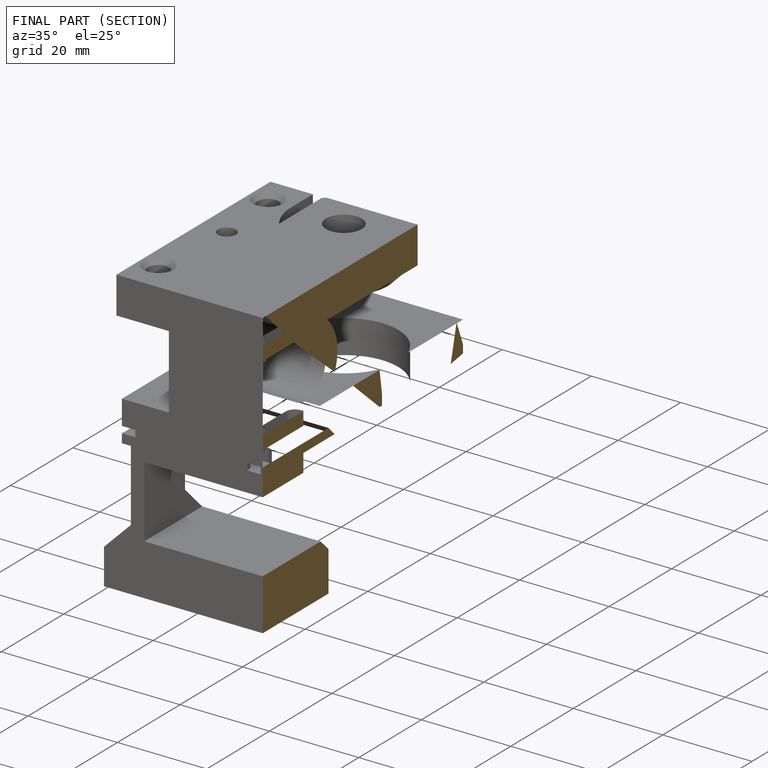
[diagram: finished part — half-section view (interior)]
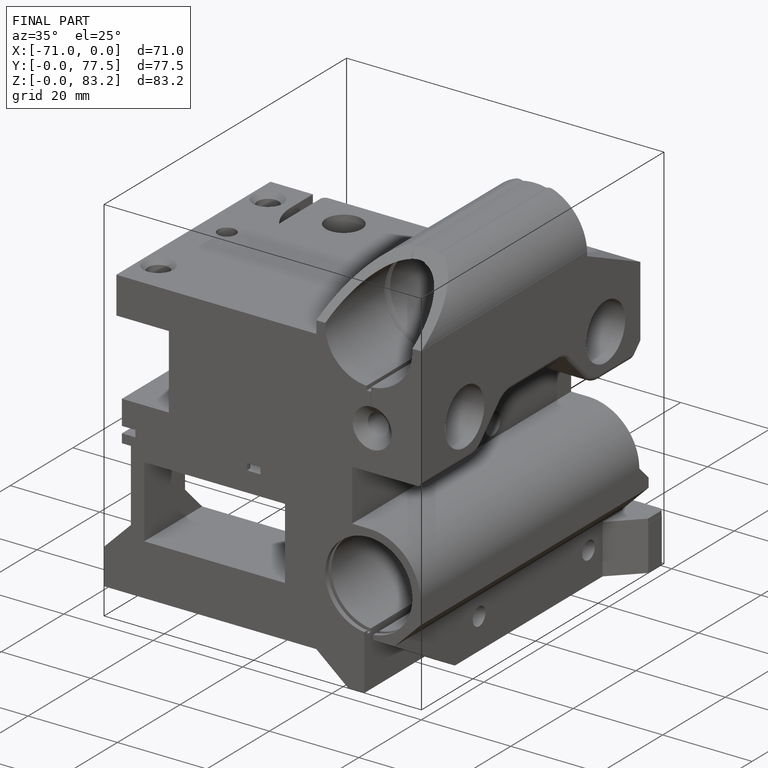
[diagram: finished part — iso view with bounding-box wireframe]
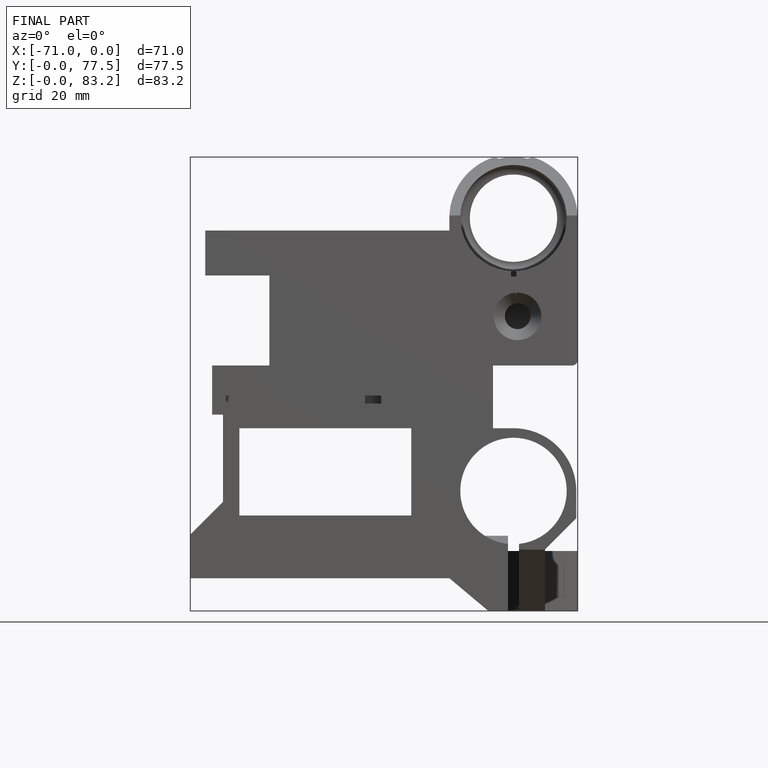
[diagram: finished part — front view with bounding-box wireframe]
